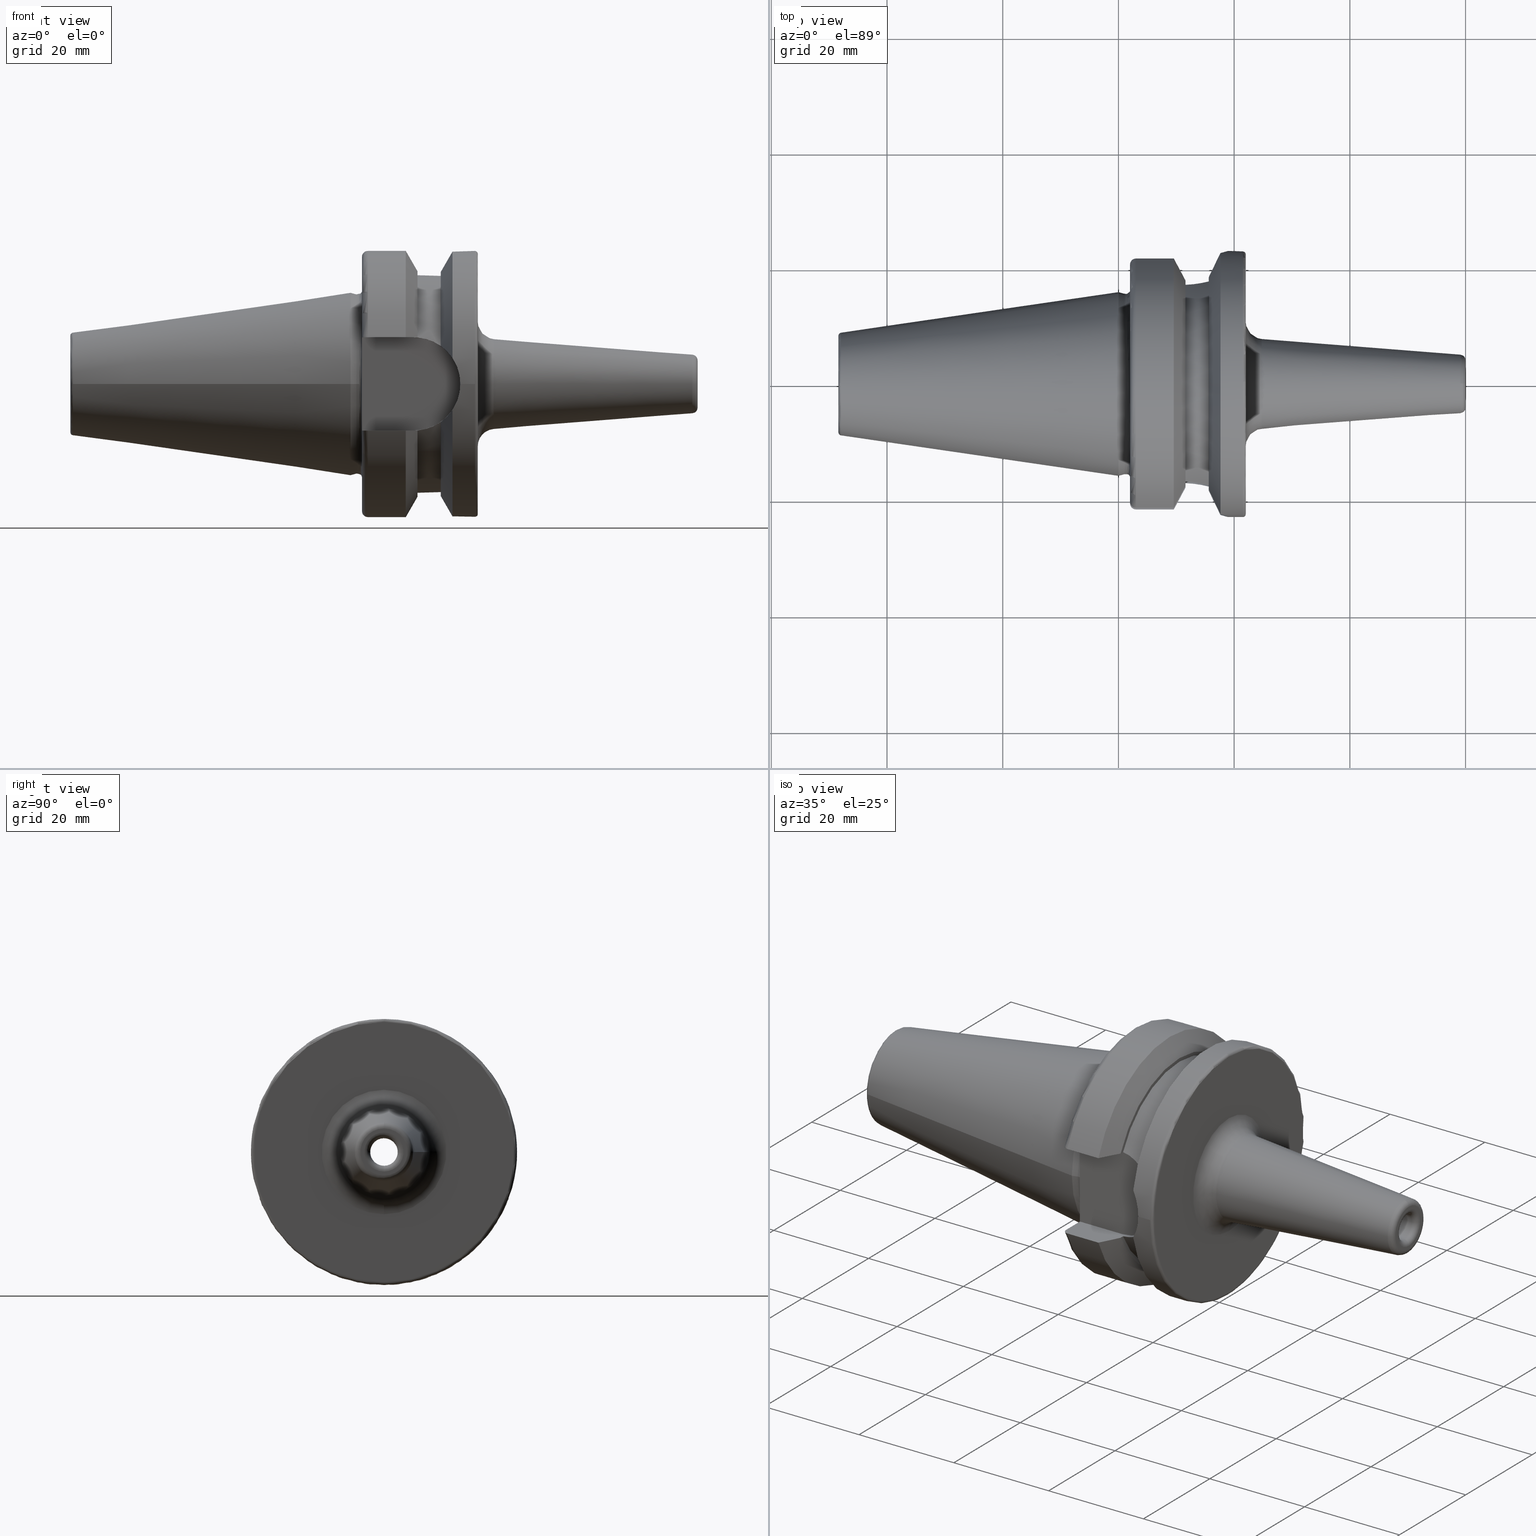
[diagram: canonical four-view strip — front | top / right | iso, engineering-drawing reading convention]
A machine part, canonical four-view strip (front | top / right | iso — engineering-drawing reading convention). The complete STEP part file that produces these views, byte-faithful:
ISO-10303-21;
HEADER;
/* Generated by software containing ST-Developer
 * from STEP Tools, Inc. (www.steptools.com) 
 */

FILE_DESCRIPTION(
/* description */ (''),
/* implementation_level */ '2;1');

FILE_NAME(
/* name */ 'VG022_BT30-SFH4.7625-2.36.stp',
/* time_stamp */ '2024-11-05T09:58:34+09:00',
/* author */ ('YSH'),
/* organization */ (''),
/* preprocessor_version */ 'ST-DEVELOPER v20',
/* originating_system */ 'Autodesk Inventor 2025',
/* authorisation */ '');

FILE_SCHEMA (('AUTOMOTIVE_DESIGN { 1 0 10303 214 3 1 1 }'));
ENDSEC;

DATA;
#10=MECHANICAL_DESIGN_GEOMETRIC_PRESENTATION_REPRESENTATION('',(#13),#1543);
#11=SHAPE_REPRESENTATION_RELATIONSHIP('SRR','None',#1550,#12);
#12=ADVANCED_BREP_SHAPE_REPRESENTATION('',(#14),#1542);
#13=STYLED_ITEM('',(#1559),#14);
#14=MANIFOLD_SOLID_BREP('\X2\C194B9ACB4DC\X0\1',#805);
#15=(
BOUNDED_CURVE()
B_SPLINE_CURVE(2,(#1303,#1304,#1305),.UNSPECIFIED.,.F.,.F.)
B_SPLINE_CURVE_WITH_KNOTS((3,3),(0.,0.293084380504246),.UNSPECIFIED.)
CURVE()
GEOMETRIC_REPRESENTATION_ITEM()
RATIONAL_B_SPLINE_CURVE((1.,1.00176330635057,1.))
REPRESENTATION_ITEM('')
);
#16=(
BOUNDED_CURVE()
B_SPLINE_CURVE(2,(#1324,#1325,#1326),.UNSPECIFIED.,.F.,.F.)
B_SPLINE_CURVE_WITH_KNOTS((3,3),(0.,0.293084380504246),.UNSPECIFIED.)
CURVE()
GEOMETRIC_REPRESENTATION_ITEM()
RATIONAL_B_SPLINE_CURVE((1.,1.0017633063523,1.))
REPRESENTATION_ITEM('')
);
#17=(
BOUNDED_CURVE()
B_SPLINE_CURVE(2,(#1395,#1396,#1397),.UNSPECIFIED.,.F.,.F.)
B_SPLINE_CURVE_WITH_KNOTS((3,3),(0.,0.293084380504246),.UNSPECIFIED.)
CURVE()
GEOMETRIC_REPRESENTATION_ITEM()
RATIONAL_B_SPLINE_CURVE((1.,1.00176330634961,1.))
REPRESENTATION_ITEM('')
);
#18=(
BOUNDED_CURVE()
B_SPLINE_CURVE(2,(#1450,#1451,#1452),.UNSPECIFIED.,.F.,.F.)
B_SPLINE_CURVE_WITH_KNOTS((3,3),(0.,0.293084380504246),.UNSPECIFIED.)
CURVE()
GEOMETRIC_REPRESENTATION_ITEM()
RATIONAL_B_SPLINE_CURVE((1.,1.00176330634997,1.))
REPRESENTATION_ITEM('')
);
#19=B_SPLINE_CURVE_WITH_KNOTS('',3,(#1237,#1238,#1239,#1240),
 .UNSPECIFIED.,.F.,.F.,(4,4),(5.0512271220615,5.18123969966482),
 .UNSPECIFIED.);
#20=B_SPLINE_CURVE_WITH_KNOTS('',3,(#1244,#1245,#1246,#1247,#1248,#1249),
 .UNSPECIFIED.,.F.,.F.,(4,2,4),(1.98157246783865,2.15302711471405,2.39646987897604),
 .UNSPECIFIED.);
#21=B_SPLINE_CURVE_WITH_KNOTS('',3,(#1253,#1254,#1255,#1256,#1257,#1258),
 .UNSPECIFIED.,.F.,.F.,(4,2,4),(7.68395213088373,8.02991733611869,8.17688748303414),
 .UNSPECIFIED.);
#22=B_SPLINE_CURVE_WITH_KNOTS('',3,(#1260,#1261,#1262,#1263,#1264,#1265),
 .UNSPECIFIED.,.F.,.F.,(4,2,4),(1.22422978521585,1.53019992929475,1.68242086035696),
 .UNSPECIFIED.);
#23=B_SPLINE_CURVE_WITH_KNOTS('',3,(#1267,#1268,#1269,#1270,#1271,#1272),
 .UNSPECIFIED.,.F.,.F.,(4,2,4),(0.766038710074736,0.918259641136944,1.22422978521585),
 .UNSPECIFIED.);
#24=B_SPLINE_CURVE_WITH_KNOTS('',3,(#1274,#1275,#1276,#1277,#1278,#1279),
 .UNSPECIFIED.,.F.,.F.,(4,2,4),(9.25978800315029,9.40675815006574,9.7527233553007),
 .UNSPECIFIED.);
#25=B_SPLINE_CURVE_WITH_KNOTS('',3,(#1283,#1284,#1285,#1286,#1287,#1288),
 .UNSPECIFIED.,.F.,.F.,(4,2,4),(0.0643720845929635,0.30781484885496,0.479269495730354),
 .UNSPECIFIED.);
#26=B_SPLINE_CURVE_WITH_KNOTS('',3,(#1292,#1293,#1294,#1295),
 .UNSPECIFIED.,.F.,.F.,(4,4),(1.61083209868431,1.74084467628762),
 .UNSPECIFIED.);
#27=B_SPLINE_CURVE_WITH_KNOTS('',3,(#1309,#1310,#1311,#1312,#1313,#1314,
#1315,#1316,#1317,#1318),.UNSPECIFIED.,.F.,.F.,(4,2,2,2,4),(-0.153429778670641,
-0.112799364340696,-0.0737022015264941,-0.0362302924551293,0.),
 .UNSPECIFIED.);
#28=B_SPLINE_CURVE_WITH_KNOTS('',3,(#1332,#1333,#1334,#1335,#1336,#1337,
#1338,#1339,#1340,#1341),.UNSPECIFIED.,.F.,.F.,(4,2,2,2,4),(0.,0.0362302924551293,
0.073702201526494,0.112799364340696,0.153429778670641),.UNSPECIFIED.);
#29=B_SPLINE_CURVE_WITH_KNOTS('',3,(#1353,#1354,#1355,#1356,#1357,#1358,
#1359,#1360,#1361,#1362),.UNSPECIFIED.,.F.,.F.,(4,2,2,2,4),(3.21449828050643,
3.36671921156864,3.67268935564754,3.97865949972644,4.13088043078865),
 .UNSPECIFIED.);
#30=B_SPLINE_CURVE_WITH_KNOTS('',3,(#1368,#1369,#1370,#1371,#1372,#1373),
 .UNSPECIFIED.,.F.,.F.,(4,2,4),(3.44756284108881,3.59453298800427,3.94049819323923),
 .UNSPECIFIED.);
#31=B_SPLINE_CURVE_WITH_KNOTS('',3,(#1381,#1382,#1383,#1384,#1385,#1386),
 .UNSPECIFIED.,.F.,.F.,(4,2,4),(2.52521404816197,2.76865681242397,2.94011145929936),
 .UNSPECIFIED.);
#32=B_SPLINE_CURVE_WITH_KNOTS('',3,(#1398,#1399,#1400,#1401),
 .UNSPECIFIED.,.F.,.F.,(4,4),(1.61083209868431,1.74084467628763),
 .UNSPECIFIED.);
#33=B_SPLINE_CURVE_WITH_KNOTS('',3,(#1409,#1410,#1411,#1412,#1413,#1414,
#1415,#1416,#1417,#1418),.UNSPECIFIED.,.F.,.F.,(4,2,2,2,4),(-0.153429778670641,
-0.112799364340696,-0.073702201526494,-0.0362302924551292,0.),
 .UNSPECIFIED.);
#34=B_SPLINE_CURVE_WITH_KNOTS('',3,(#1427,#1428,#1429,#1430),
 .UNSPECIFIED.,.F.,.F.,(4,4),(5.0512271220615,5.18123969966481),
 .UNSPECIFIED.);
#35=B_SPLINE_CURVE_WITH_KNOTS('',3,(#1434,#1435,#1436,#1437,#1438,#1439),
 .UNSPECIFIED.,.F.,.F.,(4,2,4),(4.44241443140766,4.61386907828305,4.85731184254505),
 .UNSPECIFIED.);
#36=B_SPLINE_CURVE_WITH_KNOTS('',3,(#1442,#1443,#1444,#1445,#1446,#1447),
 .UNSPECIFIED.,.F.,.F.,(4,2,4),(1.87172696882225,2.21769217405721,2.36466232097267),
 .UNSPECIFIED.);
#37=B_SPLINE_CURVE_WITH_KNOTS('',3,(#1458,#1459,#1460,#1461,#1462,#1463,
#1464,#1465,#1466,#1467),.UNSPECIFIED.,.F.,.F.,(4,2,2,2,4),(0.,0.0362302924551293,
0.0737022015264941,0.112799364340696,0.153429778670641),.UNSPECIFIED.);
#38=CONICAL_SURFACE('',#842,6.49533242966776,0.0785398163397455);
#39=CONICAL_SURFACE('',#850,1.5,1.02974425867665);
#40=CONICAL_SURFACE('',#854,2.5265,1.02974425867665);
#41=CONICAL_SURFACE('',#868,21.2331286619655,1.04937921276159);
#42=CONICAL_SURFACE('',#876,21.2331286619655,1.04937921276161);
#43=CONICAL_SURFACE('',#887,21.2331286619655,1.04937921276159);
#44=CONICAL_SURFACE('',#894,12.3770304778568,0.144812498238939);
#45=CONICAL_SURFACE('',#896,15.7375,0.261799387799149);
#46=CONICAL_SURFACE('',#910,21.2331286619655,1.04937921276161);
#47=CONICAL_SURFACE('',#923,6.4,0.26179938779915);
#48=LINE('',#1195,#87);
#49=LINE('',#1207,#88);
#50=LINE('',#1221,#89);
#51=LINE('',#1225,#90);
#52=LINE('',#1229,#91);
#53=LINE('',#1233,#92);
#54=LINE('',#1242,#93);
#55=LINE('',#1251,#94);
#56=LINE('',#1281,#95);
#57=LINE('',#1290,#96);
#58=LINE('',#1297,#97);
#59=LINE('',#1300,#98);
#60=LINE('',#1307,#99);
#61=LINE('',#1320,#100);
#62=LINE('',#1321,#101);
#63=LINE('',#1328,#102);
#64=LINE('',#1330,#103);
#65=LINE('',#1342,#104);
#66=LINE('',#1344,#105);
#67=LINE('',#1349,#106);
#68=LINE('',#1377,#107);
#69=LINE('',#1390,#108);
#70=LINE('',#1405,#109);
#71=LINE('',#1421,#110);
#72=LINE('',#1425,#111);
#73=LINE('',#1432,#112);
#74=LINE('',#1441,#113);
#75=LINE('',#1454,#114);
#76=LINE('',#1456,#115);
#77=LINE('',#1468,#116);
#78=LINE('',#1471,#117);
#79=LINE('',#1472,#118);
#80=LINE('',#1474,#119);
#81=LINE('',#1488,#120);
#82=LINE('',#1492,#121);
#83=LINE('',#1497,#122);
#84=LINE('',#1523,#123);
#85=LINE('',#1527,#124);
#86=LINE('',#1531,#125);
#87=VECTOR('',#950,2.38125);
#88=VECTOR('',#965,6.49533242966776);
#89=VECTOR('',#984,1.5);
#90=VECTOR('',#989,3.);
#91=VECTOR('',#994,2.5265);
#92=VECTOR('',#999,5.053);
#93=VECTOR('',#1002,10.);
#94=VECTOR('',#1003,10.);
#95=VECTOR('',#1004,10.);
#96=VECTOR('',#1005,10.);
#97=VECTOR('',#1006,10.);
#98=VECTOR('',#1009,10.);
#99=VECTOR('',#1012,10.);
#100=VECTOR('',#1013,10.);
#101=VECTOR('',#1014,10.);
#102=VECTOR('',#1017,10.);
#103=VECTOR('',#1018,10.);
#104=VECTOR('',#1019,10.);
#105=VECTOR('',#1022,10.);
#106=VECTOR('',#1027,23.);
#107=VECTOR('',#1042,10.);
#108=VECTOR('',#1051,10.);
#109=VECTOR('',#1060,10.);
#110=VECTOR('',#1067,10.);
#111=VECTOR('',#1070,10.);
#112=VECTOR('',#1071,10.);
#113=VECTOR('',#1072,10.);
#114=VECTOR('',#1075,10.);
#115=VECTOR('',#1076,10.);
#116=VECTOR('',#1077,10.);
#117=VECTOR('',#1080,10.);
#118=VECTOR('',#1081,10.);
#119=VECTOR('',#1084,10.);
#120=VECTOR('',#1103,12.3770304778568);
#121=VECTOR('',#1108,15.7375);
#122=VECTOR('',#1113,15.6);
#123=VECTOR('',#1158,6.55);
#124=VECTOR('',#1163,6.4);
#125=VECTOR('',#1168,6.25);
#126=CYLINDRICAL_SURFACE('',#835,2.38125);
#127=CYLINDRICAL_SURFACE('',#852,3.);
#128=CYLINDRICAL_SURFACE('',#856,5.053);
#129=CYLINDRICAL_SURFACE('',#858,8.05);
#130=CYLINDRICAL_SURFACE('',#863,23.);
#131=CYLINDRICAL_SURFACE('',#872,18.8);
#132=CYLINDRICAL_SURFACE('',#878,23.);
#133=CYLINDRICAL_SURFACE('',#882,8.05);
#134=CYLINDRICAL_SURFACE('',#898,15.6);
#135=CYLINDRICAL_SURFACE('',#908,23.);
#136=CYLINDRICAL_SURFACE('',#914,18.8);
#137=CYLINDRICAL_SURFACE('',#921,6.55);
#138=CYLINDRICAL_SURFACE('',#925,6.25);
#139=FACE_BOUND('',#208,.T.);
#140=FACE_BOUND('',#214,.T.);
#141=FACE_BOUND('',#242,.T.);
#142=FACE_BOUND('',#251,.T.);
#143=FACE_BOUND('',#257,.T.);
#144=PLANE('',#833);
#145=PLANE('',#848);
#146=PLANE('',#860);
#147=PLANE('',#861);
#148=PLANE('',#862);
#149=PLANE('',#870);
#150=PLANE('',#874);
#151=PLANE('',#884);
#152=PLANE('',#885);
#153=PLANE('',#886);
#154=PLANE('',#904);
#155=PLANE('',#912);
#156=PLANE('',#916);
#157=PLANE('',#919);
#158=PLANE('',#931);
#159=FACE_OUTER_BOUND('',#206,.T.);
#160=FACE_OUTER_BOUND('',#207,.T.);
#161=FACE_OUTER_BOUND('',#209,.T.);
#162=FACE_OUTER_BOUND('',#210,.T.);
#163=FACE_OUTER_BOUND('',#211,.T.);
#164=FACE_OUTER_BOUND('',#212,.T.);
#165=FACE_OUTER_BOUND('',#213,.T.);
#166=FACE_OUTER_BOUND('',#215,.T.);
#167=FACE_OUTER_BOUND('',#216,.T.);
#168=FACE_OUTER_BOUND('',#217,.T.);
#169=FACE_OUTER_BOUND('',#218,.T.);
#170=FACE_OUTER_BOUND('',#219,.T.);
#171=FACE_OUTER_BOUND('',#220,.T.);
#172=FACE_OUTER_BOUND('',#221,.T.);
#173=FACE_OUTER_BOUND('',#222,.T.);
#174=FACE_OUTER_BOUND('',#223,.T.);
#175=FACE_OUTER_BOUND('',#224,.T.);
#176=FACE_OUTER_BOUND('',#225,.T.);
#177=FACE_OUTER_BOUND('',#226,.T.);
#178=FACE_OUTER_BOUND('',#227,.T.);
#179=FACE_OUTER_BOUND('',#228,.T.);
#180=FACE_OUTER_BOUND('',#229,.T.);
#181=FACE_OUTER_BOUND('',#230,.T.);
#182=FACE_OUTER_BOUND('',#231,.T.);
#183=FACE_OUTER_BOUND('',#232,.T.);
#184=FACE_OUTER_BOUND('',#233,.T.);
#185=FACE_OUTER_BOUND('',#234,.T.);
#186=FACE_OUTER_BOUND('',#235,.T.);
#187=FACE_OUTER_BOUND('',#236,.T.);
#188=FACE_OUTER_BOUND('',#237,.T.);
#189=FACE_OUTER_BOUND('',#238,.T.);
#190=FACE_OUTER_BOUND('',#239,.T.);
#191=FACE_OUTER_BOUND('',#240,.T.);
#192=FACE_OUTER_BOUND('',#241,.T.);
#193=FACE_OUTER_BOUND('',#243,.T.);
#194=FACE_OUTER_BOUND('',#244,.T.);
#195=FACE_OUTER_BOUND('',#245,.T.);
#196=FACE_OUTER_BOUND('',#246,.T.);
#197=FACE_OUTER_BOUND('',#247,.T.);
#198=FACE_OUTER_BOUND('',#248,.T.);
#199=FACE_OUTER_BOUND('',#249,.T.);
#200=FACE_OUTER_BOUND('',#250,.T.);
#201=FACE_OUTER_BOUND('',#252,.T.);
#202=FACE_OUTER_BOUND('',#253,.T.);
#203=FACE_OUTER_BOUND('',#254,.T.);
#204=FACE_OUTER_BOUND('',#255,.T.);
#205=FACE_OUTER_BOUND('',#256,.T.);
#206=EDGE_LOOP('',(#511,#512,#513,#514,#515));
#207=EDGE_LOOP('',(#516));
#208=EDGE_LOOP('',(#517));
#209=EDGE_LOOP('',(#518,#519,#520,#521,#522,#523));
#210=EDGE_LOOP('',(#524,#525,#526,#527,#528));
#211=EDGE_LOOP('',(#529,#530,#531,#532,#533,#534));
#212=EDGE_LOOP('',(#535,#536,#537,#538,#539));
#213=EDGE_LOOP('',(#540));
#214=EDGE_LOOP('',(#541));
#215=EDGE_LOOP('',(#542,#543,#544,#545,#546));
#216=EDGE_LOOP('',(#547,#548,#549,#550));
#217=EDGE_LOOP('',(#551,#552,#553,#554));
#218=EDGE_LOOP('',(#555,#556,#557,#558));
#219=EDGE_LOOP('',(#559,#560,#561,#562,#563,#564,#565,#566,#567,#568,#569,
#570,#571,#572,#573));
#220=EDGE_LOOP('',(#574,#575,#576,#577,#578,#579));
#221=EDGE_LOOP('',(#580,#581,#582,#583,#584,#585));
#222=EDGE_LOOP('',(#586,#587,#588,#589));
#223=EDGE_LOOP('',(#590,#591,#592,#593,#594,#595,#596,#597,#598));
#224=EDGE_LOOP('',(#599,#600,#601,#602));
#225=EDGE_LOOP('',(#603,#604,#605,#606));
#226=EDGE_LOOP('',(#607,#608,#609,#610));
#227=EDGE_LOOP('',(#611,#612,#613,#614));
#228=EDGE_LOOP('',(#615,#616,#617,#618,#619,#620));
#229=EDGE_LOOP('',(#621,#622,#623,#624));
#230=EDGE_LOOP('',(#625,#626,#627,#628));
#231=EDGE_LOOP('',(#629,#630,#631,#632,#633,#634,#635,#636,#637,#638,#639,
#640,#641,#642));
#232=EDGE_LOOP('',(#643,#644,#645,#646,#647,#648));
#233=EDGE_LOOP('',(#649,#650,#651,#652,#653,#654));
#234=EDGE_LOOP('',(#655,#656,#657,#658));
#235=EDGE_LOOP('',(#659,#660,#661,#662));
#236=EDGE_LOOP('',(#663,#664,#665,#666,#667));
#237=EDGE_LOOP('',(#668,#669,#670,#671,#672));
#238=EDGE_LOOP('',(#673,#674,#675,#676));
#239=EDGE_LOOP('',(#677,#678,#679,#680,#681));
#240=EDGE_LOOP('',(#682,#683,#684,#685,#686));
#241=EDGE_LOOP('',(#687,#688,#689,#690,#691,#692,#693,#694));
#242=EDGE_LOOP('',(#695));
#243=EDGE_LOOP('',(#696,#697,#698,#699));
#244=EDGE_LOOP('',(#700,#701,#702,#703));
#245=EDGE_LOOP('',(#704,#705,#706,#707,#708,#709));
#246=EDGE_LOOP('',(#710,#711,#712,#713));
#247=EDGE_LOOP('',(#714,#715,#716,#717));
#248=EDGE_LOOP('',(#718,#719,#720,#721));
#249=EDGE_LOOP('',(#722,#723,#724,#725,#726));
#250=EDGE_LOOP('',(#727));
#251=EDGE_LOOP('',(#728));
#252=EDGE_LOOP('',(#729,#730,#731,#732));
#253=EDGE_LOOP('',(#733,#734,#735,#736));
#254=EDGE_LOOP('',(#737,#738,#739,#740,#741));
#255=EDGE_LOOP('',(#742,#743,#744,#745,#746));
#256=EDGE_LOOP('',(#747));
#257=EDGE_LOOP('',(#748));
#258=CIRCLE('',#829,3.38125);
#259=CIRCLE('',#830,1.);
#260=CIRCLE('',#831,2.38125);
#261=CIRCLE('',#832,2.38125);
#262=CIRCLE('',#834,4.07560950834179);
#263=CIRCLE('',#836,2.38125);
#264=CIRCLE('',#837,2.38125);
#265=CIRCLE('',#839,1.);
#266=CIRCLE('',#840,5.07252684207492);
#267=CIRCLE('',#841,5.07252684207492);
#268=CIRCLE('',#843,7.77308433311076);
#269=CIRCLE('',#844,7.77308433311076);
#270=CIRCLE('',#846,3.);
#271=CIRCLE('',#847,10.7638363343101);
#272=CIRCLE('',#849,22.5);
#273=CIRCLE('',#851,3.);
#274=CIRCLE('',#853,3.);
#275=CIRCLE('',#855,5.053);
#276=CIRCLE('',#857,5.053);
#277=CIRCLE('',#859,8.05);
#278=CIRCLE('',#864,23.);
#279=CIRCLE('',#865,23.);
#280=CIRCLE('',#866,23.);
#281=CIRCLE('',#867,23.);
#282=CIRCLE('',#869,19.466257323931);
#283=CIRCLE('',#871,18.8);
#284=CIRCLE('',#873,18.8);
#285=CIRCLE('',#875,19.466257323931);
#286=CIRCLE('',#877,23.);
#287=CIRCLE('',#879,23.);
#288=CIRCLE('',#881,22.);
#289=CIRCLE('',#883,8.05);
#290=CIRCLE('',#888,19.466257323931);
#291=CIRCLE('',#890,8.87906095571352);
#292=CIRCLE('',#891,8.87906095571352);
#293=CIRCLE('',#892,0.5);
#294=CIRCLE('',#893,8.38429446518188);
#295=CIRCLE('',#895,15.875);
#296=CIRCLE('',#897,15.6);
#297=CIRCLE('',#899,15.6);
#298=CIRCLE('',#900,15.6);
#299=CIRCLE('',#902,0.499999999999997);
#300=CIRCLE('',#903,16.1);
#301=CIRCLE('',#905,22.);
#302=CIRCLE('',#907,23.);
#303=CIRCLE('',#909,23.);
#304=CIRCLE('',#911,19.466257323931);
#305=CIRCLE('',#913,18.8);
#306=CIRCLE('',#915,18.8);
#307=CIRCLE('',#918,0.499999999999998);
#308=CIRCLE('',#920,6.55);
#309=CIRCLE('',#922,6.55);
#310=CIRCLE('',#924,6.25);
#311=CIRCLE('',#926,6.25);
#312=CIRCLE('',#927,6.25);
#313=CIRCLE('',#929,7.05);
#314=CIRCLE('',#930,0.8);
#315=VERTEX_POINT('',#1183);
#316=VERTEX_POINT('',#1185);
#317=VERTEX_POINT('',#1187);
#318=VERTEX_POINT('',#1191);
#319=VERTEX_POINT('',#1194);
#320=VERTEX_POINT('',#1196);
#321=VERTEX_POINT('',#1200);
#322=VERTEX_POINT('',#1202);
#323=VERTEX_POINT('',#1206);
#324=VERTEX_POINT('',#1208);
#325=VERTEX_POINT('',#1212);
#326=VERTEX_POINT('',#1216);
#327=VERTEX_POINT('',#1219);
#328=VERTEX_POINT('',#1223);
#329=VERTEX_POINT('',#1227);
#330=VERTEX_POINT('',#1231);
#331=VERTEX_POINT('',#1235);
#332=VERTEX_POINT('',#1236);
#333=VERTEX_POINT('',#1241);
#334=VERTEX_POINT('',#1243);
#335=VERTEX_POINT('',#1250);
#336=VERTEX_POINT('',#1252);
#337=VERTEX_POINT('',#1259);
#338=VERTEX_POINT('',#1266);
#339=VERTEX_POINT('',#1273);
#340=VERTEX_POINT('',#1280);
#341=VERTEX_POINT('',#1282);
#342=VERTEX_POINT('',#1289);
#343=VERTEX_POINT('',#1291);
#344=VERTEX_POINT('',#1296);
#345=VERTEX_POINT('',#1298);
#346=VERTEX_POINT('',#1302);
#347=VERTEX_POINT('',#1306);
#348=VERTEX_POINT('',#1308);
#349=VERTEX_POINT('',#1319);
#350=VERTEX_POINT('',#1323);
#351=VERTEX_POINT('',#1327);
#352=VERTEX_POINT('',#1329);
#353=VERTEX_POINT('',#1331);
#354=VERTEX_POINT('',#1346);
#355=VERTEX_POINT('',#1347);
#356=VERTEX_POINT('',#1350);
#357=VERTEX_POINT('',#1352);
#358=VERTEX_POINT('',#1366);
#359=VERTEX_POINT('',#1375);
#360=VERTEX_POINT('',#1379);
#361=VERTEX_POINT('',#1388);
#362=VERTEX_POINT('',#1392);
#363=VERTEX_POINT('',#1394);
#364=VERTEX_POINT('',#1403);
#365=VERTEX_POINT('',#1407);
#366=VERTEX_POINT('',#1420);
#367=VERTEX_POINT('',#1422);
#368=VERTEX_POINT('',#1424);
#369=VERTEX_POINT('',#1426);
#370=VERTEX_POINT('',#1431);
#371=VERTEX_POINT('',#1433);
#372=VERTEX_POINT('',#1440);
#373=VERTEX_POINT('',#1449);
#374=VERTEX_POINT('',#1453);
#375=VERTEX_POINT('',#1455);
#376=VERTEX_POINT('',#1457);
#377=VERTEX_POINT('',#1470);
#378=VERTEX_POINT('',#1478);
#379=VERTEX_POINT('',#1479);
#380=VERTEX_POINT('',#1482);
#381=VERTEX_POINT('',#1486);
#382=VERTEX_POINT('',#1490);
#383=VERTEX_POINT('',#1494);
#384=VERTEX_POINT('',#1495);
#385=VERTEX_POINT('',#1500);
#386=VERTEX_POINT('',#1519);
#387=VERTEX_POINT('',#1522);
#388=VERTEX_POINT('',#1526);
#389=VERTEX_POINT('',#1530);
#390=VERTEX_POINT('',#1532);
#391=VERTEX_POINT('',#1536);
#392=EDGE_CURVE('',#315,#315,#258,.T.);
#393=EDGE_CURVE('',#315,#316,#259,.T.);
#394=EDGE_CURVE('',#316,#317,#260,.T.);
#395=EDGE_CURVE('',#317,#316,#261,.T.);
#396=EDGE_CURVE('',#318,#318,#262,.T.);
#397=EDGE_CURVE('',#317,#319,#48,.T.);
#398=EDGE_CURVE('',#320,#319,#263,.T.);
#399=EDGE_CURVE('',#319,#320,#264,.T.);
#400=EDGE_CURVE('',#318,#321,#265,.T.);
#401=EDGE_CURVE('',#321,#322,#266,.T.);
#402=EDGE_CURVE('',#322,#321,#267,.T.);
#403=EDGE_CURVE('',#322,#323,#49,.T.);
#404=EDGE_CURVE('',#324,#323,#268,.T.);
#405=EDGE_CURVE('',#323,#324,#269,.T.);
#406=EDGE_CURVE('',#324,#325,#270,.T.);
#407=EDGE_CURVE('',#325,#325,#271,.T.);
#408=EDGE_CURVE('',#326,#326,#272,.T.);
#409=EDGE_CURVE('',#327,#327,#273,.T.);
#410=EDGE_CURVE('',#327,#320,#50,.T.);
#411=EDGE_CURVE('',#328,#328,#274,.T.);
#412=EDGE_CURVE('',#328,#327,#51,.T.);
#413=EDGE_CURVE('',#329,#329,#275,.T.);
#414=EDGE_CURVE('',#329,#328,#52,.T.);
#415=EDGE_CURVE('',#330,#330,#276,.T.);
#416=EDGE_CURVE('',#330,#329,#53,.T.);
#417=EDGE_CURVE('',#331,#332,#19,.T.);
#418=EDGE_CURVE('',#333,#331,#54,.T.);
#419=EDGE_CURVE('',#334,#333,#20,.T.);
#420=EDGE_CURVE('',#335,#334,#55,.T.);
#421=EDGE_CURVE('',#335,#336,#21,.T.);
#422=EDGE_CURVE('',#337,#336,#22,.T.);
#423=EDGE_CURVE('',#338,#337,#23,.T.);
#424=EDGE_CURVE('',#338,#339,#24,.T.);
#425=EDGE_CURVE('',#340,#339,#56,.T.);
#426=EDGE_CURVE('',#341,#340,#25,.T.);
#427=EDGE_CURVE('',#342,#341,#57,.T.);
#428=EDGE_CURVE('',#343,#342,#26,.T.);
#429=EDGE_CURVE('',#344,#343,#58,.T.);
#430=EDGE_CURVE('',#344,#345,#277,.T.);
#431=EDGE_CURVE('',#345,#332,#59,.T.);
#432=EDGE_CURVE('',#346,#343,#15,.T.);
#433=EDGE_CURVE('',#347,#346,#60,.T.);
#434=EDGE_CURVE('',#348,#347,#27,.T.);
#435=EDGE_CURVE('',#349,#348,#61,.T.);
#436=EDGE_CURVE('',#349,#344,#62,.T.);
#437=EDGE_CURVE('',#332,#350,#16,.T.);
#438=EDGE_CURVE('',#345,#351,#63,.T.);
#439=EDGE_CURVE('',#352,#351,#64,.T.);
#440=EDGE_CURVE('',#353,#352,#28,.T.);
#441=EDGE_CURVE('',#350,#353,#65,.T.);
#442=EDGE_CURVE('',#351,#349,#66,.T.);
#443=EDGE_CURVE('',#354,#355,#278,.T.);
#444=EDGE_CURVE('',#354,#337,#67,.T.);
#445=EDGE_CURVE('',#336,#356,#279,.T.);
#446=EDGE_CURVE('',#356,#357,#29,.T.);
#447=EDGE_CURVE('',#357,#338,#280,.T.);
#448=EDGE_CURVE('',#355,#354,#281,.T.);
#449=EDGE_CURVE('',#335,#358,#282,.T.);
#450=EDGE_CURVE('',#356,#358,#30,.T.);
#451=EDGE_CURVE('',#334,#359,#283,.T.);
#452=EDGE_CURVE('',#359,#358,#68,.T.);
#453=EDGE_CURVE('',#333,#360,#284,.T.);
#454=EDGE_CURVE('',#360,#359,#31,.T.);
#455=EDGE_CURVE('',#331,#361,#285,.T.);
#456=EDGE_CURVE('',#361,#360,#69,.T.);
#457=EDGE_CURVE('',#350,#362,#286,.T.);
#458=EDGE_CURVE('',#362,#363,#17,.T.);
#459=EDGE_CURVE('',#363,#361,#32,.T.);
#460=EDGE_CURVE('',#353,#364,#287,.T.);
#461=EDGE_CURVE('',#364,#362,#70,.T.);
#462=EDGE_CURVE('',#352,#365,#288,.T.);
#463=EDGE_CURVE('',#365,#364,#33,.T.);
#464=EDGE_CURVE('',#366,#363,#71,.T.);
#465=EDGE_CURVE('',#367,#366,#289,.T.);
#466=EDGE_CURVE('',#367,#368,#72,.T.);
#467=EDGE_CURVE('',#369,#368,#34,.T.);
#468=EDGE_CURVE('',#370,#369,#73,.T.);
#469=EDGE_CURVE('',#371,#370,#35,.T.);
#470=EDGE_CURVE('',#372,#371,#74,.T.);
#471=EDGE_CURVE('',#372,#357,#36,.T.);
#472=EDGE_CURVE('',#368,#373,#18,.T.);
#473=EDGE_CURVE('',#374,#367,#75,.T.);
#474=EDGE_CURVE('',#375,#374,#76,.T.);
#475=EDGE_CURVE('',#376,#375,#37,.T.);
#476=EDGE_CURVE('',#373,#376,#77,.T.);
#477=EDGE_CURVE('',#377,#365,#78,.T.);
#478=EDGE_CURVE('',#366,#377,#79,.T.);
#479=EDGE_CURVE('',#374,#377,#80,.T.);
#480=EDGE_CURVE('',#372,#339,#290,.T.);
#481=EDGE_CURVE('',#378,#379,#291,.T.);
#482=EDGE_CURVE('',#379,#378,#292,.T.);
#483=EDGE_CURVE('',#379,#380,#293,.T.);
#484=EDGE_CURVE('',#380,#380,#294,.T.);
#485=EDGE_CURVE('',#381,#381,#295,.T.);
#486=EDGE_CURVE('',#381,#378,#81,.T.);
#487=EDGE_CURVE('',#382,#382,#296,.T.);
#488=EDGE_CURVE('',#382,#381,#82,.T.);
#489=EDGE_CURVE('',#383,#384,#297,.T.);
#490=EDGE_CURVE('',#383,#382,#83,.T.);
#491=EDGE_CURVE('',#384,#383,#298,.T.);
#492=EDGE_CURVE('',#384,#385,#299,.T.);
#493=EDGE_CURVE('',#385,#385,#300,.T.);
#494=EDGE_CURVE('',#375,#348,#301,.T.);
#495=EDGE_CURVE('',#376,#347,#302,.T.);
#496=EDGE_CURVE('',#373,#346,#303,.T.);
#497=EDGE_CURVE('',#369,#342,#304,.T.);
#498=EDGE_CURVE('',#370,#341,#305,.T.);
#499=EDGE_CURVE('',#371,#340,#306,.T.);
#500=EDGE_CURVE('',#326,#355,#307,.T.);
#501=EDGE_CURVE('',#386,#386,#308,.T.);
#502=EDGE_CURVE('',#386,#387,#84,.T.);
#503=EDGE_CURVE('',#387,#387,#309,.T.);
#504=EDGE_CURVE('',#387,#388,#85,.T.);
#505=EDGE_CURVE('',#388,#388,#310,.T.);
#506=EDGE_CURVE('',#388,#389,#86,.T.);
#507=EDGE_CURVE('',#390,#389,#311,.T.);
#508=EDGE_CURVE('',#389,#390,#312,.T.);
#509=EDGE_CURVE('',#391,#391,#313,.T.);
#510=EDGE_CURVE('',#391,#390,#314,.T.);
#511=ORIENTED_EDGE('',*,*,#392,.T.);
#512=ORIENTED_EDGE('',*,*,#393,.T.);
#513=ORIENTED_EDGE('',*,*,#394,.T.);
#514=ORIENTED_EDGE('',*,*,#395,.T.);
#515=ORIENTED_EDGE('',*,*,#393,.F.);
#516=ORIENTED_EDGE('',*,*,#396,.F.);
#517=ORIENTED_EDGE('',*,*,#392,.F.);
#518=ORIENTED_EDGE('',*,*,#394,.F.);
#519=ORIENTED_EDGE('',*,*,#395,.F.);
#520=ORIENTED_EDGE('',*,*,#397,.T.);
#521=ORIENTED_EDGE('',*,*,#398,.F.);
#522=ORIENTED_EDGE('',*,*,#399,.F.);
#523=ORIENTED_EDGE('',*,*,#397,.F.);
#524=ORIENTED_EDGE('',*,*,#396,.T.);
#525=ORIENTED_EDGE('',*,*,#400,.T.);
#526=ORIENTED_EDGE('',*,*,#401,.T.);
#527=ORIENTED_EDGE('',*,*,#402,.T.);
#528=ORIENTED_EDGE('',*,*,#400,.F.);
#529=ORIENTED_EDGE('',*,*,#401,.F.);
#530=ORIENTED_EDGE('',*,*,#402,.F.);
#531=ORIENTED_EDGE('',*,*,#403,.T.);
#532=ORIENTED_EDGE('',*,*,#404,.F.);
#533=ORIENTED_EDGE('',*,*,#405,.F.);
#534=ORIENTED_EDGE('',*,*,#403,.F.);
#535=ORIENTED_EDGE('',*,*,#404,.T.);
#536=ORIENTED_EDGE('',*,*,#405,.T.);
#537=ORIENTED_EDGE('',*,*,#406,.T.);
#538=ORIENTED_EDGE('',*,*,#407,.T.);
#539=ORIENTED_EDGE('',*,*,#406,.F.);
#540=ORIENTED_EDGE('',*,*,#408,.T.);
#541=ORIENTED_EDGE('',*,*,#407,.F.);
#542=ORIENTED_EDGE('',*,*,#409,.T.);
#543=ORIENTED_EDGE('',*,*,#410,.T.);
#544=ORIENTED_EDGE('',*,*,#398,.T.);
#545=ORIENTED_EDGE('',*,*,#399,.T.);
#546=ORIENTED_EDGE('',*,*,#410,.F.);
#547=ORIENTED_EDGE('',*,*,#411,.F.);
#548=ORIENTED_EDGE('',*,*,#412,.T.);
#549=ORIENTED_EDGE('',*,*,#409,.F.);
#550=ORIENTED_EDGE('',*,*,#412,.F.);
#551=ORIENTED_EDGE('',*,*,#413,.T.);
#552=ORIENTED_EDGE('',*,*,#414,.T.);
#553=ORIENTED_EDGE('',*,*,#411,.T.);
#554=ORIENTED_EDGE('',*,*,#414,.F.);
#555=ORIENTED_EDGE('',*,*,#415,.F.);
#556=ORIENTED_EDGE('',*,*,#416,.T.);
#557=ORIENTED_EDGE('',*,*,#413,.F.);
#558=ORIENTED_EDGE('',*,*,#416,.F.);
#559=ORIENTED_EDGE('',*,*,#417,.F.);
#560=ORIENTED_EDGE('',*,*,#418,.F.);
#561=ORIENTED_EDGE('',*,*,#419,.F.);
#562=ORIENTED_EDGE('',*,*,#420,.F.);
#563=ORIENTED_EDGE('',*,*,#421,.T.);
#564=ORIENTED_EDGE('',*,*,#422,.F.);
#565=ORIENTED_EDGE('',*,*,#423,.F.);
#566=ORIENTED_EDGE('',*,*,#424,.T.);
#567=ORIENTED_EDGE('',*,*,#425,.F.);
#568=ORIENTED_EDGE('',*,*,#426,.F.);
#569=ORIENTED_EDGE('',*,*,#427,.F.);
#570=ORIENTED_EDGE('',*,*,#428,.F.);
#571=ORIENTED_EDGE('',*,*,#429,.F.);
#572=ORIENTED_EDGE('',*,*,#430,.T.);
#573=ORIENTED_EDGE('',*,*,#431,.T.);
#574=ORIENTED_EDGE('',*,*,#432,.F.);
#575=ORIENTED_EDGE('',*,*,#433,.F.);
#576=ORIENTED_EDGE('',*,*,#434,.F.);
#577=ORIENTED_EDGE('',*,*,#435,.F.);
#578=ORIENTED_EDGE('',*,*,#436,.T.);
#579=ORIENTED_EDGE('',*,*,#429,.T.);
#580=ORIENTED_EDGE('',*,*,#437,.F.);
#581=ORIENTED_EDGE('',*,*,#431,.F.);
#582=ORIENTED_EDGE('',*,*,#438,.T.);
#583=ORIENTED_EDGE('',*,*,#439,.F.);
#584=ORIENTED_EDGE('',*,*,#440,.F.);
#585=ORIENTED_EDGE('',*,*,#441,.F.);
#586=ORIENTED_EDGE('',*,*,#438,.F.);
#587=ORIENTED_EDGE('',*,*,#430,.F.);
#588=ORIENTED_EDGE('',*,*,#436,.F.);
#589=ORIENTED_EDGE('',*,*,#442,.F.);
#590=ORIENTED_EDGE('',*,*,#443,.F.);
#591=ORIENTED_EDGE('',*,*,#444,.T.);
#592=ORIENTED_EDGE('',*,*,#422,.T.);
#593=ORIENTED_EDGE('',*,*,#445,.T.);
#594=ORIENTED_EDGE('',*,*,#446,.T.);
#595=ORIENTED_EDGE('',*,*,#447,.T.);
#596=ORIENTED_EDGE('',*,*,#423,.T.);
#597=ORIENTED_EDGE('',*,*,#444,.F.);
#598=ORIENTED_EDGE('',*,*,#448,.F.);
#599=ORIENTED_EDGE('',*,*,#421,.F.);
#600=ORIENTED_EDGE('',*,*,#449,.T.);
#601=ORIENTED_EDGE('',*,*,#450,.F.);
#602=ORIENTED_EDGE('',*,*,#445,.F.);
#603=ORIENTED_EDGE('',*,*,#420,.T.);
#604=ORIENTED_EDGE('',*,*,#451,.T.);
#605=ORIENTED_EDGE('',*,*,#452,.T.);
#606=ORIENTED_EDGE('',*,*,#449,.F.);
#607=ORIENTED_EDGE('',*,*,#419,.T.);
#608=ORIENTED_EDGE('',*,*,#453,.T.);
#609=ORIENTED_EDGE('',*,*,#454,.T.);
#610=ORIENTED_EDGE('',*,*,#451,.F.);
#611=ORIENTED_EDGE('',*,*,#418,.T.);
#612=ORIENTED_EDGE('',*,*,#455,.T.);
#613=ORIENTED_EDGE('',*,*,#456,.T.);
#614=ORIENTED_EDGE('',*,*,#453,.F.);
#615=ORIENTED_EDGE('',*,*,#417,.T.);
#616=ORIENTED_EDGE('',*,*,#437,.T.);
#617=ORIENTED_EDGE('',*,*,#457,.T.);
#618=ORIENTED_EDGE('',*,*,#458,.T.);
#619=ORIENTED_EDGE('',*,*,#459,.T.);
#620=ORIENTED_EDGE('',*,*,#455,.F.);
#621=ORIENTED_EDGE('',*,*,#441,.T.);
#622=ORIENTED_EDGE('',*,*,#460,.T.);
#623=ORIENTED_EDGE('',*,*,#461,.T.);
#624=ORIENTED_EDGE('',*,*,#457,.F.);
#625=ORIENTED_EDGE('',*,*,#440,.T.);
#626=ORIENTED_EDGE('',*,*,#462,.T.);
#627=ORIENTED_EDGE('',*,*,#463,.T.);
#628=ORIENTED_EDGE('',*,*,#460,.F.);
#629=ORIENTED_EDGE('',*,*,#459,.F.);
#630=ORIENTED_EDGE('',*,*,#464,.F.);
#631=ORIENTED_EDGE('',*,*,#465,.F.);
#632=ORIENTED_EDGE('',*,*,#466,.T.);
#633=ORIENTED_EDGE('',*,*,#467,.F.);
#634=ORIENTED_EDGE('',*,*,#468,.F.);
#635=ORIENTED_EDGE('',*,*,#469,.F.);
#636=ORIENTED_EDGE('',*,*,#470,.F.);
#637=ORIENTED_EDGE('',*,*,#471,.T.);
#638=ORIENTED_EDGE('',*,*,#446,.F.);
#639=ORIENTED_EDGE('',*,*,#450,.T.);
#640=ORIENTED_EDGE('',*,*,#452,.F.);
#641=ORIENTED_EDGE('',*,*,#454,.F.);
#642=ORIENTED_EDGE('',*,*,#456,.F.);
#643=ORIENTED_EDGE('',*,*,#472,.F.);
#644=ORIENTED_EDGE('',*,*,#466,.F.);
#645=ORIENTED_EDGE('',*,*,#473,.F.);
#646=ORIENTED_EDGE('',*,*,#474,.F.);
#647=ORIENTED_EDGE('',*,*,#475,.F.);
#648=ORIENTED_EDGE('',*,*,#476,.F.);
#649=ORIENTED_EDGE('',*,*,#458,.F.);
#650=ORIENTED_EDGE('',*,*,#461,.F.);
#651=ORIENTED_EDGE('',*,*,#463,.F.);
#652=ORIENTED_EDGE('',*,*,#477,.F.);
#653=ORIENTED_EDGE('',*,*,#478,.F.);
#654=ORIENTED_EDGE('',*,*,#464,.T.);
#655=ORIENTED_EDGE('',*,*,#478,.T.);
#656=ORIENTED_EDGE('',*,*,#479,.F.);
#657=ORIENTED_EDGE('',*,*,#473,.T.);
#658=ORIENTED_EDGE('',*,*,#465,.T.);
#659=ORIENTED_EDGE('',*,*,#424,.F.);
#660=ORIENTED_EDGE('',*,*,#447,.F.);
#661=ORIENTED_EDGE('',*,*,#471,.F.);
#662=ORIENTED_EDGE('',*,*,#480,.T.);
#663=ORIENTED_EDGE('',*,*,#481,.F.);
#664=ORIENTED_EDGE('',*,*,#482,.F.);
#665=ORIENTED_EDGE('',*,*,#483,.T.);
#666=ORIENTED_EDGE('',*,*,#484,.T.);
#667=ORIENTED_EDGE('',*,*,#483,.F.);
#668=ORIENTED_EDGE('',*,*,#485,.F.);
#669=ORIENTED_EDGE('',*,*,#486,.T.);
#670=ORIENTED_EDGE('',*,*,#481,.T.);
#671=ORIENTED_EDGE('',*,*,#482,.T.);
#672=ORIENTED_EDGE('',*,*,#486,.F.);
#673=ORIENTED_EDGE('',*,*,#487,.F.);
#674=ORIENTED_EDGE('',*,*,#488,.T.);
#675=ORIENTED_EDGE('',*,*,#485,.T.);
#676=ORIENTED_EDGE('',*,*,#488,.F.);
#677=ORIENTED_EDGE('',*,*,#489,.F.);
#678=ORIENTED_EDGE('',*,*,#490,.T.);
#679=ORIENTED_EDGE('',*,*,#487,.T.);
#680=ORIENTED_EDGE('',*,*,#490,.F.);
#681=ORIENTED_EDGE('',*,*,#491,.F.);
#682=ORIENTED_EDGE('',*,*,#489,.T.);
#683=ORIENTED_EDGE('',*,*,#492,.T.);
#684=ORIENTED_EDGE('',*,*,#493,.F.);
#685=ORIENTED_EDGE('',*,*,#492,.F.);
#686=ORIENTED_EDGE('',*,*,#491,.T.);
#687=ORIENTED_EDGE('',*,*,#435,.T.);
#688=ORIENTED_EDGE('',*,*,#494,.F.);
#689=ORIENTED_EDGE('',*,*,#474,.T.);
#690=ORIENTED_EDGE('',*,*,#479,.T.);
#691=ORIENTED_EDGE('',*,*,#477,.T.);
#692=ORIENTED_EDGE('',*,*,#462,.F.);
#693=ORIENTED_EDGE('',*,*,#439,.T.);
#694=ORIENTED_EDGE('',*,*,#442,.T.);
#695=ORIENTED_EDGE('',*,*,#493,.T.);
#696=ORIENTED_EDGE('',*,*,#434,.T.);
#697=ORIENTED_EDGE('',*,*,#495,.F.);
#698=ORIENTED_EDGE('',*,*,#475,.T.);
#699=ORIENTED_EDGE('',*,*,#494,.T.);
#700=ORIENTED_EDGE('',*,*,#433,.T.);
#701=ORIENTED_EDGE('',*,*,#496,.F.);
#702=ORIENTED_EDGE('',*,*,#476,.T.);
#703=ORIENTED_EDGE('',*,*,#495,.T.);
#704=ORIENTED_EDGE('',*,*,#428,.T.);
#705=ORIENTED_EDGE('',*,*,#497,.F.);
#706=ORIENTED_EDGE('',*,*,#467,.T.);
#707=ORIENTED_EDGE('',*,*,#472,.T.);
#708=ORIENTED_EDGE('',*,*,#496,.T.);
#709=ORIENTED_EDGE('',*,*,#432,.T.);
#710=ORIENTED_EDGE('',*,*,#427,.T.);
#711=ORIENTED_EDGE('',*,*,#498,.F.);
#712=ORIENTED_EDGE('',*,*,#468,.T.);
#713=ORIENTED_EDGE('',*,*,#497,.T.);
#714=ORIENTED_EDGE('',*,*,#426,.T.);
#715=ORIENTED_EDGE('',*,*,#499,.F.);
#716=ORIENTED_EDGE('',*,*,#469,.T.);
#717=ORIENTED_EDGE('',*,*,#498,.T.);
#718=ORIENTED_EDGE('',*,*,#425,.T.);
#719=ORIENTED_EDGE('',*,*,#480,.F.);
#720=ORIENTED_EDGE('',*,*,#470,.T.);
#721=ORIENTED_EDGE('',*,*,#499,.T.);
#722=ORIENTED_EDGE('',*,*,#408,.F.);
#723=ORIENTED_EDGE('',*,*,#500,.T.);
#724=ORIENTED_EDGE('',*,*,#448,.T.);
#725=ORIENTED_EDGE('',*,*,#443,.T.);
#726=ORIENTED_EDGE('',*,*,#500,.F.);
#727=ORIENTED_EDGE('',*,*,#501,.F.);
#728=ORIENTED_EDGE('',*,*,#415,.T.);
#729=ORIENTED_EDGE('',*,*,#501,.T.);
#730=ORIENTED_EDGE('',*,*,#502,.T.);
#731=ORIENTED_EDGE('',*,*,#503,.F.);
#732=ORIENTED_EDGE('',*,*,#502,.F.);
#733=ORIENTED_EDGE('',*,*,#503,.T.);
#734=ORIENTED_EDGE('',*,*,#504,.T.);
#735=ORIENTED_EDGE('',*,*,#505,.F.);
#736=ORIENTED_EDGE('',*,*,#504,.F.);
#737=ORIENTED_EDGE('',*,*,#505,.T.);
#738=ORIENTED_EDGE('',*,*,#506,.T.);
#739=ORIENTED_EDGE('',*,*,#507,.F.);
#740=ORIENTED_EDGE('',*,*,#508,.F.);
#741=ORIENTED_EDGE('',*,*,#506,.F.);
#742=ORIENTED_EDGE('',*,*,#509,.F.);
#743=ORIENTED_EDGE('',*,*,#510,.T.);
#744=ORIENTED_EDGE('',*,*,#507,.T.);
#745=ORIENTED_EDGE('',*,*,#508,.T.);
#746=ORIENTED_EDGE('',*,*,#510,.F.);
#747=ORIENTED_EDGE('',*,*,#484,.F.);
#748=ORIENTED_EDGE('',*,*,#509,.T.);
#749=TOROIDAL_SURFACE('',#828,3.38125,1.);
#750=TOROIDAL_SURFACE('',#838,4.07560950834179,1.);
#751=TOROIDAL_SURFACE('',#845,10.7638363343101,3.);
#752=TOROIDAL_SURFACE('',#880,22.,1.00000000000001);
#753=TOROIDAL_SURFACE('',#889,8.38429446518188,0.5);
#754=TOROIDAL_SURFACE('',#901,16.1,0.499999999999997);
#755=TOROIDAL_SURFACE('',#906,22.,1.00000000000001);
#756=TOROIDAL_SURFACE('',#917,22.5,0.499999999999998);
#757=TOROIDAL_SURFACE('',#928,7.05,0.8);
#758=ADVANCED_FACE('',(#159),#749,.T.);
#759=ADVANCED_FACE('',(#160,#139),#144,.T.);
#760=ADVANCED_FACE('',(#161),#126,.F.);
#761=ADVANCED_FACE('',(#162),#750,.T.);
#762=ADVANCED_FACE('',(#163),#38,.T.);
#763=ADVANCED_FACE('',(#164),#751,.F.);
#764=ADVANCED_FACE('',(#165,#140),#145,.T.);
#765=ADVANCED_FACE('',(#166),#39,.F.);
#766=ADVANCED_FACE('',(#167),#127,.F.);
#767=ADVANCED_FACE('',(#168),#40,.F.);
#768=ADVANCED_FACE('',(#169),#128,.F.);
#769=ADVANCED_FACE('',(#170),#129,.F.);
#770=ADVANCED_FACE('',(#171),#146,.T.);
#771=ADVANCED_FACE('',(#172),#147,.T.);
#772=ADVANCED_FACE('',(#173),#148,.F.);
#773=ADVANCED_FACE('',(#174),#130,.T.);
#774=ADVANCED_FACE('',(#175),#41,.T.);
#775=ADVANCED_FACE('',(#176),#149,.T.);
#776=ADVANCED_FACE('',(#177),#131,.T.);
#777=ADVANCED_FACE('',(#178),#150,.T.);
#778=ADVANCED_FACE('',(#179),#42,.T.);
#779=ADVANCED_FACE('',(#180),#132,.T.);
#780=ADVANCED_FACE('',(#181),#752,.T.);
#781=ADVANCED_FACE('',(#182),#133,.F.);
#782=ADVANCED_FACE('',(#183),#151,.F.);
#783=ADVANCED_FACE('',(#184),#152,.F.);
#784=ADVANCED_FACE('',(#185),#153,.T.);
#785=ADVANCED_FACE('',(#186),#43,.T.);
#786=ADVANCED_FACE('',(#187),#753,.T.);
#787=ADVANCED_FACE('',(#188),#44,.T.);
#788=ADVANCED_FACE('',(#189),#45,.T.);
#789=ADVANCED_FACE('',(#190),#134,.T.);
#790=ADVANCED_FACE('',(#191),#754,.F.);
#791=ADVANCED_FACE('',(#192,#141),#154,.T.);
#792=ADVANCED_FACE('',(#193),#755,.T.);
#793=ADVANCED_FACE('',(#194),#135,.T.);
#794=ADVANCED_FACE('',(#195),#46,.T.);
#795=ADVANCED_FACE('',(#196),#155,.T.);
#796=ADVANCED_FACE('',(#197),#136,.T.);
#797=ADVANCED_FACE('',(#198),#156,.T.);
#798=ADVANCED_FACE('',(#199),#756,.T.);
#799=ADVANCED_FACE('',(#200,#142),#157,.T.);
#800=ADVANCED_FACE('',(#201),#137,.F.);
#801=ADVANCED_FACE('',(#202),#47,.F.);
#802=ADVANCED_FACE('',(#203),#138,.F.);
#803=ADVANCED_FACE('',(#204),#757,.T.);
#804=ADVANCED_FACE('',(#205,#143),#158,.T.);
#805=CLOSED_SHELL('',(#758,#759,#760,#761,#762,#763,#764,#765,#766,#767,
#768,#769,#770,#771,#772,#773,#774,#775,#776,#777,#778,#779,#780,#781,#782,
#783,#784,#785,#786,#787,#788,#789,#790,#791,#792,#793,#794,#795,#796,#797,
#798,#799,#800,#801,#802,#803,#804));
#806=DERIVED_UNIT_ELEMENT(#809,1.);
#807=DERIVED_UNIT_ELEMENT(#1545,-3.);
#808=DIMENSIONAL_EXPONENTS(0.,1.,0.,0.,0.,0.,0.);
#809=(
CONVERSION_BASED_UNIT('gram',#811)
MASS_UNIT()
NAMED_UNIT(#808)
);
#810=(
MASS_UNIT()
NAMED_UNIT(*)
SI_UNIT(.KILO.,.GRAM.)
);
#811=MASS_MEASURE_WITH_UNIT(MASS_MEASURE(0.001),#810);
#812=DERIVED_UNIT((#806,#807));
#813=MEASURE_REPRESENTATION_ITEM('density measure',
POSITIVE_RATIO_MEASURE(1.),#812);
#814=PROPERTY_DEFINITION_REPRESENTATION(#819,#816);
#815=PROPERTY_DEFINITION_REPRESENTATION(#820,#817);
#816=REPRESENTATION('material name',(#818),#1542);
#817=REPRESENTATION('density',(#813),#1542);
#818=DESCRIPTIVE_REPRESENTATION_ITEM('\X2\C77CBC18\X0\','\X2\C77CBC18\X0\');
#819=PROPERTY_DEFINITION('material property','material name',#1552);
#820=PROPERTY_DEFINITION('material property','density of part',#1552);
#821=DATE_TIME_ROLE('creation_date');
#822=APPLIED_DATE_AND_TIME_ASSIGNMENT(#823,#821,(#1552));
#823=DATE_AND_TIME(#824,#825);
#824=CALENDAR_DATE(2020,17,3);
#825=LOCAL_TIME(0,0,0.,#826);
#826=COORDINATED_UNIVERSAL_TIME_OFFSET(0,0,.BEHIND.);
#827=AXIS2_PLACEMENT_3D('',#1181,#932,#933);
#828=AXIS2_PLACEMENT_3D('',#1182,#934,#935);
#829=AXIS2_PLACEMENT_3D('',#1184,#936,#937);
#830=AXIS2_PLACEMENT_3D('',#1186,#938,#939);
#831=AXIS2_PLACEMENT_3D('',#1188,#940,#941);
#832=AXIS2_PLACEMENT_3D('',#1189,#942,#943);
#833=AXIS2_PLACEMENT_3D('',#1190,#944,#945);
#834=AXIS2_PLACEMENT_3D('',#1192,#946,#947);
#835=AXIS2_PLACEMENT_3D('',#1193,#948,#949);
#836=AXIS2_PLACEMENT_3D('',#1197,#951,#952);
#837=AXIS2_PLACEMENT_3D('',#1198,#953,#954);
#838=AXIS2_PLACEMENT_3D('',#1199,#955,#956);
#839=AXIS2_PLACEMENT_3D('',#1201,#957,#958);
#840=AXIS2_PLACEMENT_3D('',#1203,#959,#960);
#841=AXIS2_PLACEMENT_3D('',#1204,#961,#962);
#842=AXIS2_PLACEMENT_3D('',#1205,#963,#964);
#843=AXIS2_PLACEMENT_3D('',#1209,#966,#967);
#844=AXIS2_PLACEMENT_3D('',#1210,#968,#969);
#845=AXIS2_PLACEMENT_3D('',#1211,#970,#971);
#846=AXIS2_PLACEMENT_3D('',#1213,#972,#973);
#847=AXIS2_PLACEMENT_3D('',#1214,#974,#975);
#848=AXIS2_PLACEMENT_3D('',#1215,#976,#977);
#849=AXIS2_PLACEMENT_3D('',#1217,#978,#979);
#850=AXIS2_PLACEMENT_3D('',#1218,#980,#981);
#851=AXIS2_PLACEMENT_3D('',#1220,#982,#983);
#852=AXIS2_PLACEMENT_3D('',#1222,#985,#986);
#853=AXIS2_PLACEMENT_3D('',#1224,#987,#988);
#854=AXIS2_PLACEMENT_3D('',#1226,#990,#991);
#855=AXIS2_PLACEMENT_3D('',#1228,#992,#993);
#856=AXIS2_PLACEMENT_3D('',#1230,#995,#996);
#857=AXIS2_PLACEMENT_3D('',#1232,#997,#998);
#858=AXIS2_PLACEMENT_3D('',#1234,#1000,#1001);
#859=AXIS2_PLACEMENT_3D('',#1299,#1007,#1008);
#860=AXIS2_PLACEMENT_3D('',#1301,#1010,#1011);
#861=AXIS2_PLACEMENT_3D('',#1322,#1015,#1016);
#862=AXIS2_PLACEMENT_3D('',#1343,#1020,#1021);
#863=AXIS2_PLACEMENT_3D('',#1345,#1023,#1024);
#864=AXIS2_PLACEMENT_3D('',#1348,#1025,#1026);
#865=AXIS2_PLACEMENT_3D('',#1351,#1028,#1029);
#866=AXIS2_PLACEMENT_3D('',#1363,#1030,#1031);
#867=AXIS2_PLACEMENT_3D('',#1364,#1032,#1033);
#868=AXIS2_PLACEMENT_3D('',#1365,#1034,#1035);
#869=AXIS2_PLACEMENT_3D('',#1367,#1036,#1037);
#870=AXIS2_PLACEMENT_3D('',#1374,#1038,#1039);
#871=AXIS2_PLACEMENT_3D('',#1376,#1040,#1041);
#872=AXIS2_PLACEMENT_3D('',#1378,#1043,#1044);
#873=AXIS2_PLACEMENT_3D('',#1380,#1045,#1046);
#874=AXIS2_PLACEMENT_3D('',#1387,#1047,#1048);
#875=AXIS2_PLACEMENT_3D('',#1389,#1049,#1050);
#876=AXIS2_PLACEMENT_3D('',#1391,#1052,#1053);
#877=AXIS2_PLACEMENT_3D('',#1393,#1054,#1055);
#878=AXIS2_PLACEMENT_3D('',#1402,#1056,#1057);
#879=AXIS2_PLACEMENT_3D('',#1404,#1058,#1059);
#880=AXIS2_PLACEMENT_3D('',#1406,#1061,#1062);
#881=AXIS2_PLACEMENT_3D('',#1408,#1063,#1064);
#882=AXIS2_PLACEMENT_3D('',#1419,#1065,#1066);
#883=AXIS2_PLACEMENT_3D('',#1423,#1068,#1069);
#884=AXIS2_PLACEMENT_3D('',#1448,#1073,#1074);
#885=AXIS2_PLACEMENT_3D('',#1469,#1078,#1079);
#886=AXIS2_PLACEMENT_3D('',#1473,#1082,#1083);
#887=AXIS2_PLACEMENT_3D('',#1475,#1085,#1086);
#888=AXIS2_PLACEMENT_3D('',#1476,#1087,#1088);
#889=AXIS2_PLACEMENT_3D('',#1477,#1089,#1090);
#890=AXIS2_PLACEMENT_3D('',#1480,#1091,#1092);
#891=AXIS2_PLACEMENT_3D('',#1481,#1093,#1094);
#892=AXIS2_PLACEMENT_3D('',#1483,#1095,#1096);
#893=AXIS2_PLACEMENT_3D('',#1484,#1097,#1098);
#894=AXIS2_PLACEMENT_3D('',#1485,#1099,#1100);
#895=AXIS2_PLACEMENT_3D('',#1487,#1101,#1102);
#896=AXIS2_PLACEMENT_3D('',#1489,#1104,#1105);
#897=AXIS2_PLACEMENT_3D('',#1491,#1106,#1107);
#898=AXIS2_PLACEMENT_3D('',#1493,#1109,#1110);
#899=AXIS2_PLACEMENT_3D('',#1496,#1111,#1112);
#900=AXIS2_PLACEMENT_3D('',#1498,#1114,#1115);
#901=AXIS2_PLACEMENT_3D('',#1499,#1116,#1117);
#902=AXIS2_PLACEMENT_3D('',#1501,#1118,#1119);
#903=AXIS2_PLACEMENT_3D('',#1502,#1120,#1121);
#904=AXIS2_PLACEMENT_3D('',#1503,#1122,#1123);
#905=AXIS2_PLACEMENT_3D('',#1504,#1124,#1125);
#906=AXIS2_PLACEMENT_3D('',#1505,#1126,#1127);
#907=AXIS2_PLACEMENT_3D('',#1506,#1128,#1129);
#908=AXIS2_PLACEMENT_3D('',#1507,#1130,#1131);
#909=AXIS2_PLACEMENT_3D('',#1508,#1132,#1133);
#910=AXIS2_PLACEMENT_3D('',#1509,#1134,#1135);
#911=AXIS2_PLACEMENT_3D('',#1510,#1136,#1137);
#912=AXIS2_PLACEMENT_3D('',#1511,#1138,#1139);
#913=AXIS2_PLACEMENT_3D('',#1512,#1140,#1141);
#914=AXIS2_PLACEMENT_3D('',#1513,#1142,#1143);
#915=AXIS2_PLACEMENT_3D('',#1514,#1144,#1145);
#916=AXIS2_PLACEMENT_3D('',#1515,#1146,#1147);
#917=AXIS2_PLACEMENT_3D('',#1516,#1148,#1149);
#918=AXIS2_PLACEMENT_3D('',#1517,#1150,#1151);
#919=AXIS2_PLACEMENT_3D('',#1518,#1152,#1153);
#920=AXIS2_PLACEMENT_3D('',#1520,#1154,#1155);
#921=AXIS2_PLACEMENT_3D('',#1521,#1156,#1157);
#922=AXIS2_PLACEMENT_3D('',#1524,#1159,#1160);
#923=AXIS2_PLACEMENT_3D('',#1525,#1161,#1162);
#924=AXIS2_PLACEMENT_3D('',#1528,#1164,#1165);
#925=AXIS2_PLACEMENT_3D('',#1529,#1166,#1167);
#926=AXIS2_PLACEMENT_3D('',#1533,#1169,#1170);
#927=AXIS2_PLACEMENT_3D('',#1534,#1171,#1172);
#928=AXIS2_PLACEMENT_3D('',#1535,#1173,#1174);
#929=AXIS2_PLACEMENT_3D('',#1537,#1175,#1176);
#930=AXIS2_PLACEMENT_3D('',#1538,#1177,#1178);
#931=AXIS2_PLACEMENT_3D('',#1539,#1179,#1180);
#932=DIRECTION('axis',(0.,0.,1.));
#933=DIRECTION('refdir',(1.,0.,0.));
#934=DIRECTION('center_axis',(-1.,0.,0.));
#935=DIRECTION('ref_axis',(0.,0.,1.));
#936=DIRECTION('center_axis',(1.,0.,0.));
#937=DIRECTION('ref_axis',(0.,-1.22464679914735E-16,1.));
#938=DIRECTION('center_axis',(0.,-1.,1.22464679914735E-16));
#939=DIRECTION('ref_axis',(0.,-1.22464679914735E-16,-1.));
#940=DIRECTION('center_axis',(-1.,0.,0.));
#941=DIRECTION('ref_axis',(0.,-1.22464679914735E-16,1.));
#942=DIRECTION('center_axis',(-1.,0.,0.));
#943=DIRECTION('ref_axis',(0.,-1.22464679914735E-16,1.));
#944=DIRECTION('center_axis',(1.,0.,0.));
#945=DIRECTION('ref_axis',(0.,0.,-1.));
#946=DIRECTION('center_axis',(-1.,0.,0.));
#947=DIRECTION('ref_axis',(0.,1.,-6.12323399573677E-17));
#948=DIRECTION('center_axis',(1.,0.,0.));
#949=DIRECTION('ref_axis',(0.,0.,-1.));
#950=DIRECTION('',(-1.,0.,0.));
#951=DIRECTION('center_axis',(1.,0.,0.));
#952=DIRECTION('ref_axis',(0.,0.,-1.));
#953=DIRECTION('center_axis',(1.,0.,0.));
#954=DIRECTION('ref_axis',(0.,0.,-1.));
#955=DIRECTION('center_axis',(1.,0.,0.));
#956=DIRECTION('ref_axis',(0.,0.,-1.));
#957=DIRECTION('center_axis',(0.,-1.,-1.22464679914735E-16));
#958=DIRECTION('ref_axis',(0.,-1.22464679914735E-16,1.));
#959=DIRECTION('center_axis',(1.,0.,0.));
#960=DIRECTION('ref_axis',(0.,1.,3.06161699786838E-17));
#961=DIRECTION('center_axis',(1.,0.,0.));
#962=DIRECTION('ref_axis',(0.,1.,3.06161699786838E-17));
#963=DIRECTION('center_axis',(-1.,0.,0.));
#964=DIRECTION('ref_axis',(0.,-1.,0.));
#965=DIRECTION('',(-0.996917333733128,0.0784590957278456,9.6084680447102E-18));
#966=DIRECTION('center_axis',(-1.,0.,0.));
#967=DIRECTION('ref_axis',(0.,1.,1.22464679914735E-16));
#968=DIRECTION('center_axis',(-1.,0.,0.));
#969=DIRECTION('ref_axis',(0.,1.,1.22464679914735E-16));
#970=DIRECTION('center_axis',(-1.,-1.62798202122572E-21,0.));
#971=DIRECTION('ref_axis',(0.,0.,1.));
#972=DIRECTION('center_axis',(1.62798202122572E-21,-1.,1.22464679914735E-16));
#973=DIRECTION('ref_axis',(0.,-1.22464679914735E-16,-1.));
#974=DIRECTION('center_axis',(1.,1.62798202122572E-21,0.));
#975=DIRECTION('ref_axis',(-1.62798202122572E-21,1.,1.22464679914735E-16));
#976=DIRECTION('center_axis',(1.,1.62798202122572E-21,0.));
#977=DIRECTION('ref_axis',(0.,0.,-1.));
#978=DIRECTION('center_axis',(1.,1.62798202122572E-21,0.));
#979=DIRECTION('ref_axis',(0.,0.,-1.));
#980=DIRECTION('center_axis',(-1.,-1.62798202122572E-21,0.));
#981=DIRECTION('ref_axis',(0.,0.,1.));
#982=DIRECTION('center_axis',(-1.,-1.62798202122572E-21,0.));
#983=DIRECTION('ref_axis',(0.,0.,1.));
#984=DIRECTION('',(0.515038074910054,1.04973557586588E-16,0.857167300702112));
#985=DIRECTION('center_axis',(-1.,-1.62798202122572E-21,0.));
#986=DIRECTION('ref_axis',(0.,0.,1.));
#987=DIRECTION('center_axis',(1.,1.62798202122572E-21,0.));
#988=DIRECTION('ref_axis',(0.,0.,1.));
#989=DIRECTION('',(1.,1.62798202122572E-21,0.));
#990=DIRECTION('center_axis',(-1.,-1.62798202122572E-21,0.));
#991=DIRECTION('ref_axis',(0.,0.,1.));
#992=DIRECTION('center_axis',(-1.,-1.62798202122572E-21,0.));
#993=DIRECTION('ref_axis',(0.,0.,1.));
#994=DIRECTION('',(0.515038074910054,1.04973557586588E-16,0.857167300702112));
#995=DIRECTION('center_axis',(-1.,-1.62798202122572E-21,0.));
#996=DIRECTION('ref_axis',(0.,0.,1.));
#997=DIRECTION('center_axis',(1.,1.62798202122572E-21,0.));
#998=DIRECTION('ref_axis',(0.,0.,1.));
#999=DIRECTION('',(1.,1.62798202122572E-21,0.));
#1000=DIRECTION('center_axis',(0.,1.,0.));
#1001=DIRECTION('ref_axis',(1.,0.,-1.83697019872103E-16));
#1002=DIRECTION('',(0.,-1.,0.));
#1003=DIRECTION('',(0.,1.,0.));
#1004=DIRECTION('',(0.,-1.,0.));
#1005=DIRECTION('',(0.,1.,0.));
#1006=DIRECTION('',(0.,-1.,0.));
#1007=DIRECTION('center_axis',(0.,1.,0.));
#1008=DIRECTION('ref_axis',(0.,0.,1.));
#1009=DIRECTION('',(0.,-1.,0.));
#1010=DIRECTION('center_axis',(0.,0.,-1.));
#1011=DIRECTION('ref_axis',(1.,0.,0.));
#1012=DIRECTION('',(1.,1.62798202122572E-21,0.));
#1013=DIRECTION('',(1.62798202122572E-21,-1.,0.));
#1014=DIRECTION('',(1.,0.,0.));
#1015=DIRECTION('center_axis',(-4.96189061284986E-16,0.,1.));
#1016=DIRECTION('ref_axis',(-1.,0.,-4.96189061284986E-16));
#1017=DIRECTION('',(-1.,0.,-4.96189061284986E-16));
#1018=DIRECTION('',(-1.62798202122572E-21,1.,-8.07786870900826E-37));
#1019=DIRECTION('',(-1.,-1.62798202122572E-21,0.));
#1020=DIRECTION('center_axis',(0.,1.,0.));
#1021=DIRECTION('ref_axis',(0.,0.,1.));
#1022=DIRECTION('',(0.,0.,1.));
#1023=DIRECTION('center_axis',(1.,1.62798202122572E-21,0.));
#1024=DIRECTION('ref_axis',(0.,1.,0.));
#1025=DIRECTION('center_axis',(1.,1.62798202122572E-21,0.));
#1026=DIRECTION('ref_axis',(0.,0.,-1.));
#1027=DIRECTION('',(-1.,-1.62798202122572E-21,0.));
#1028=DIRECTION('center_axis',(1.,1.62798202122572E-21,0.));
#1029=DIRECTION('ref_axis',(0.,0.,-1.));
#1030=DIRECTION('center_axis',(1.,1.62798202122572E-21,0.));
#1031=DIRECTION('ref_axis',(0.,0.,-1.));
#1032=DIRECTION('center_axis',(1.,1.62798202122572E-21,0.));
#1033=DIRECTION('ref_axis',(0.,0.,-1.));
#1034=DIRECTION('center_axis',(1.,1.62798202122572E-21,0.));
#1035=DIRECTION('ref_axis',(0.,1.,0.));
#1036=DIRECTION('center_axis',(1.,1.62798202122572E-21,0.));
#1037=DIRECTION('ref_axis',(0.,0.,-1.));
#1038=DIRECTION('center_axis',(-1.,-1.62798202122572E-21,0.));
#1039=DIRECTION('ref_axis',(0.,0.,1.));
#1040=DIRECTION('center_axis',(1.,1.62798202122572E-21,0.));
#1041=DIRECTION('ref_axis',(0.,0.,-1.));
#1042=DIRECTION('',(0.,1.,0.));
#1043=DIRECTION('center_axis',(1.,1.62798202122572E-21,0.));
#1044=DIRECTION('ref_axis',(0.,1.,0.));
#1045=DIRECTION('center_axis',(1.,1.62798202122572E-21,0.));
#1046=DIRECTION('ref_axis',(0.,0.,-1.));
#1047=DIRECTION('center_axis',(1.,1.62798202122572E-21,0.));
#1048=DIRECTION('ref_axis',(0.,0.,-1.));
#1049=DIRECTION('center_axis',(1.,1.62798202122572E-21,0.));
#1050=DIRECTION('ref_axis',(0.,0.,-1.));
#1051=DIRECTION('',(0.,-1.,0.));
#1052=DIRECTION('center_axis',(-1.,-1.62798202122572E-21,0.));
#1053=DIRECTION('ref_axis',(0.,1.,0.));
#1054=DIRECTION('center_axis',(1.,1.62798202122572E-21,0.));
#1055=DIRECTION('ref_axis',(0.,0.,-1.));
#1056=DIRECTION('center_axis',(1.,1.62798202122572E-21,0.));
#1057=DIRECTION('ref_axis',(0.,1.,0.));
#1058=DIRECTION('center_axis',(1.,1.62798202122572E-21,0.));
#1059=DIRECTION('ref_axis',(0.,0.,-1.));
#1060=DIRECTION('',(1.,1.62798202122572E-21,0.));
#1061=DIRECTION('center_axis',(1.,1.62798202122572E-21,0.));
#1062=DIRECTION('ref_axis',(0.,0.,-1.));
#1063=DIRECTION('center_axis',(1.,1.62798202122572E-21,0.));
#1064=DIRECTION('ref_axis',(0.,0.,-1.));
#1065=DIRECTION('center_axis',(0.,1.,0.));
#1066=DIRECTION('ref_axis',(0.,0.,1.));
#1067=DIRECTION('',(0.,1.,0.));
#1068=DIRECTION('center_axis',(0.,1.,0.));
#1069=DIRECTION('ref_axis',(0.,0.,1.));
#1070=DIRECTION('',(0.,1.,0.));
#1071=DIRECTION('',(0.,1.,0.));
#1072=DIRECTION('',(0.,-1.,0.));
#1073=DIRECTION('center_axis',(0.,0.,1.));
#1074=DIRECTION('ref_axis',(1.,0.,0.));
#1075=DIRECTION('',(1.,0.,0.));
#1076=DIRECTION('',(1.62798202122572E-21,-1.,0.));
#1077=DIRECTION('',(-1.,-1.62798202122572E-21,0.));
#1078=DIRECTION('center_axis',(4.96189061284986E-16,0.,-1.));
#1079=DIRECTION('ref_axis',(-1.,0.,-4.96189061284986E-16));
#1080=DIRECTION('',(-1.62798202122572E-21,1.,-8.07786870900826E-37));
#1081=DIRECTION('',(-1.,0.,-4.96189061284986E-16));
#1082=DIRECTION('center_axis',(0.,1.,0.));
#1083=DIRECTION('ref_axis',(0.,0.,1.));
#1084=DIRECTION('',(0.,0.,-1.));
#1085=DIRECTION('center_axis',(1.,1.62798202122572E-21,0.));
#1086=DIRECTION('ref_axis',(0.,1.,0.));
#1087=DIRECTION('center_axis',(1.,1.62798202122572E-21,0.));
#1088=DIRECTION('ref_axis',(0.,0.,-1.));
#1089=DIRECTION('center_axis',(1.,1.62798202122572E-21,0.));
#1090=DIRECTION('ref_axis',(0.,0.,-1.));
#1091=DIRECTION('center_axis',(1.,1.62798202122572E-21,0.));
#1092=DIRECTION('ref_axis',(0.,0.,-1.));
#1093=DIRECTION('center_axis',(1.,1.62798202122572E-21,0.));
#1094=DIRECTION('ref_axis',(0.,0.,-1.));
#1095=DIRECTION('center_axis',(1.62798202122572E-21,-1.,-1.22464679914735E-16));
#1096=DIRECTION('ref_axis',(0.,-1.22464679914735E-16,1.));
#1097=DIRECTION('center_axis',(1.,1.62798202122572E-21,0.));
#1098=DIRECTION('ref_axis',(0.,0.,-1.));
#1099=DIRECTION('center_axis',(1.,1.62798202122572E-21,0.));
#1100=DIRECTION('ref_axis',(0.,1.,0.));
#1101=DIRECTION('center_axis',(1.,1.62798202122572E-21,0.));
#1102=DIRECTION('ref_axis',(0.,0.,-1.));
#1103=DIRECTION('',(-0.989532981063282,0.144306893071729,1.76724974695192E-17));
#1104=DIRECTION('center_axis',(-1.,-1.62798202122572E-21,0.));
#1105=DIRECTION('ref_axis',(0.,1.,0.));
#1106=DIRECTION('center_axis',(1.,1.62798202122572E-21,0.));
#1107=DIRECTION('ref_axis',(0.,0.,-1.));
#1108=DIRECTION('',(-0.965925826289069,-0.25881904510252,-3.16961915143175E-17));
#1109=DIRECTION('center_axis',(1.,1.62798202122572E-21,0.));
#1110=DIRECTION('ref_axis',(0.,1.,0.));
#1111=DIRECTION('center_axis',(1.,1.62798202122572E-21,0.));
#1112=DIRECTION('ref_axis',(0.,0.,-1.));
#1113=DIRECTION('',(-1.,-1.62798202122572E-21,0.));
#1114=DIRECTION('center_axis',(1.,1.62798202122572E-21,0.));
#1115=DIRECTION('ref_axis',(0.,0.,-1.));
#1116=DIRECTION('center_axis',(1.,1.62798202122572E-21,0.));
#1117=DIRECTION('ref_axis',(0.,0.,-1.));
#1118=DIRECTION('center_axis',(1.62798202122572E-21,-1.,-1.22464679914735E-16));
#1119=DIRECTION('ref_axis',(0.,-1.22464679914735E-16,1.));
#1120=DIRECTION('center_axis',(1.,1.62798202122572E-21,0.));
#1121=DIRECTION('ref_axis',(0.,0.,-1.));
#1122=DIRECTION('center_axis',(-1.,-1.62798202122572E-21,0.));
#1123=DIRECTION('ref_axis',(0.,0.,1.));
#1124=DIRECTION('center_axis',(1.,1.62798202122572E-21,0.));
#1125=DIRECTION('ref_axis',(0.,0.,-1.));
#1126=DIRECTION('center_axis',(1.,1.62798202122572E-21,0.));
#1127=DIRECTION('ref_axis',(0.,-1.22464679914735E-16,1.));
#1128=DIRECTION('center_axis',(1.,1.62798202122572E-21,0.));
#1129=DIRECTION('ref_axis',(0.,0.,-1.));
#1130=DIRECTION('center_axis',(1.,1.62798202122572E-21,0.));
#1131=DIRECTION('ref_axis',(0.,1.,0.));
#1132=DIRECTION('center_axis',(1.,1.62798202122572E-21,0.));
#1133=DIRECTION('ref_axis',(0.,0.,-1.));
#1134=DIRECTION('center_axis',(-1.,-1.62798202122572E-21,0.));
#1135=DIRECTION('ref_axis',(0.,1.,0.));
#1136=DIRECTION('center_axis',(1.,1.62798202122572E-21,0.));
#1137=DIRECTION('ref_axis',(0.,0.,-1.));
#1138=DIRECTION('center_axis',(1.,1.62798202122572E-21,0.));
#1139=DIRECTION('ref_axis',(0.,0.,-1.));
#1140=DIRECTION('center_axis',(1.,1.62798202122572E-21,0.));
#1141=DIRECTION('ref_axis',(0.,0.,-1.));
#1142=DIRECTION('center_axis',(1.,1.62798202122572E-21,0.));
#1143=DIRECTION('ref_axis',(0.,1.,0.));
#1144=DIRECTION('center_axis',(1.,1.62798202122572E-21,0.));
#1145=DIRECTION('ref_axis',(0.,0.,-1.));
#1146=DIRECTION('center_axis',(-1.,-1.62798202122572E-21,0.));
#1147=DIRECTION('ref_axis',(0.,0.,1.));
#1148=DIRECTION('center_axis',(1.,1.62798202122572E-21,0.));
#1149=DIRECTION('ref_axis',(0.,0.,-1.));
#1150=DIRECTION('center_axis',(1.62798202122572E-21,-1.,-1.22464679914735E-16));
#1151=DIRECTION('ref_axis',(0.,-1.22464679914735E-16,1.));
#1152=DIRECTION('center_axis',(-1.,-1.62798202122572E-21,0.));
#1153=DIRECTION('ref_axis',(0.,0.,1.));
#1154=DIRECTION('center_axis',(1.,1.62798202122572E-21,0.));
#1155=DIRECTION('ref_axis',(0.,0.,-1.));
#1156=DIRECTION('center_axis',(1.,1.62798202122572E-21,0.));
#1157=DIRECTION('ref_axis',(0.,1.,0.));
#1158=DIRECTION('',(-1.,-1.62798202122572E-21,0.));
#1159=DIRECTION('center_axis',(1.,1.62798202122572E-21,0.));
#1160=DIRECTION('ref_axis',(0.,0.,-1.));
#1161=DIRECTION('center_axis',(1.,1.62798202122572E-21,0.));
#1162=DIRECTION('ref_axis',(0.,1.,0.));
#1163=DIRECTION('',(-0.965925826289068,0.258819045102521,3.16961915143177E-17));
#1164=DIRECTION('center_axis',(1.,1.62798202122572E-21,0.));
#1165=DIRECTION('ref_axis',(0.,0.,-1.));
#1166=DIRECTION('center_axis',(1.,1.62798202122572E-21,0.));
#1167=DIRECTION('ref_axis',(0.,1.,0.));
#1168=DIRECTION('',(-1.,-1.62798202122572E-21,0.));
#1169=DIRECTION('center_axis',(1.,1.62798202122572E-21,0.));
#1170=DIRECTION('ref_axis',(0.,0.,-1.));
#1171=DIRECTION('center_axis',(1.,1.62798202122572E-21,0.));
#1172=DIRECTION('ref_axis',(0.,0.,-1.));
#1173=DIRECTION('center_axis',(1.,1.62798202122572E-21,0.));
#1174=DIRECTION('ref_axis',(0.,0.,-1.));
#1175=DIRECTION('center_axis',(1.,1.62798202122572E-21,0.));
#1176=DIRECTION('ref_axis',(0.,0.,-1.));
#1177=DIRECTION('center_axis',(1.62798202122572E-21,-1.,-1.22464679914735E-16));
#1178=DIRECTION('ref_axis',(0.,-1.22464679914735E-16,1.));
#1179=DIRECTION('center_axis',(-1.,-1.62798202122572E-21,0.));
#1180=DIRECTION('ref_axis',(0.,0.,1.));
#1181=CARTESIAN_POINT('',(0.,0.,0.));
#1182=CARTESIAN_POINT('Origin',(59.,0.,0.));
#1183=CARTESIAN_POINT('',(60.,8.28167397923398E-16,-3.38125));
#1184=CARTESIAN_POINT('Origin',(60.,0.,0.));
#1185=CARTESIAN_POINT('',(59.,0.,-2.38125));
#1186=CARTESIAN_POINT('Origin',(59.,-4.14083698961699E-16,-3.38125));
#1187=CARTESIAN_POINT('',(59.,-2.91619019046964E-16,2.38125));
#1188=CARTESIAN_POINT('Origin',(59.,0.,0.));
#1189=CARTESIAN_POINT('Origin',(59.,0.,0.));
#1190=CARTESIAN_POINT('Origin',(60.,0.,0.));
#1191=CARTESIAN_POINT('',(60.,-4.9911821389653E-16,4.07560950834179));
#1192=CARTESIAN_POINT('Origin',(60.,0.,0.));
#1193=CARTESIAN_POINT('Origin',(-66.4247628728617,0.,0.));
#1194=CARTESIAN_POINT('',(48.0117825080233,-2.91619019046964E-16,2.38125));
#1195=CARTESIAN_POINT('',(-66.4247628728617,-2.91619019046964E-16,2.38125));
#1196=CARTESIAN_POINT('',(48.0117825080233,-2.91473458272556E-16,-2.38125000000001));
#1197=CARTESIAN_POINT('Origin',(48.0117825080233,0.,0.));
#1198=CARTESIAN_POINT('Origin',(48.0117825080233,0.,0.));
#1199=CARTESIAN_POINT('Origin',(59.,0.,0.));
#1200=CARTESIAN_POINT('',(59.0784590957278,-6.21205376073608E-16,5.07252684207492));
#1201=CARTESIAN_POINT('Origin',(59.,-4.9911821389653E-16,4.07560950834179));
#1202=CARTESIAN_POINT('',(59.0784590957278,5.07252684207492,6.21205376073608E-16));
#1203=CARTESIAN_POINT('Origin',(59.0784590957278,0.,4.65904032055206E-16));
#1204=CARTESIAN_POINT('Origin',(59.0784590957278,0.,4.65904032055206E-16));
#1205=CARTESIAN_POINT('Origin',(41.,0.,0.));
#1206=CARTESIAN_POINT('',(24.7646227128164,7.77308433311076,9.51928284804654E-16));
#1207=CARTESIAN_POINT('',(41.,6.49533242966776,7.95448806939063E-16));
#1208=CARTESIAN_POINT('',(24.7646227128164,-9.51928667994645E-16,-7.77308433311076));
#1209=CARTESIAN_POINT('Origin',(24.7646227128164,0.,0.));
#1210=CARTESIAN_POINT('Origin',(24.7646227128164,0.,0.));
#1211=CARTESIAN_POINT('Origin',(25.,0.,0.));
#1212=CARTESIAN_POINT('',(22.,-1.31819465528195E-15,-10.7638363343101));
#1213=CARTESIAN_POINT('Origin',(25.,-1.31818977133589E-15,-10.7638363343101));
#1214=CARTESIAN_POINT('Origin',(22.,-4.88394606367717E-21,0.));
#1215=CARTESIAN_POINT('Origin',(22.,2.0818995585505E-15,0.));
#1216=CARTESIAN_POINT('',(22.,-6.73683912849231E-16,22.5));
#1217=CARTESIAN_POINT('Origin',(22.,2.08177138523231E-15,0.));
#1218=CARTESIAN_POINT('Origin',(48.5412909285413,1.46422804597407E-19,0.));
#1219=CARTESIAN_POINT('',(47.64,-3.67249084225036E-16,-3.));
#1220=CARTESIAN_POINT('Origin',(47.64,1.44955519169848E-19,0.));
#1221=CARTESIAN_POINT('',(48.5412909285413,-1.83550597067506E-16,-1.5));
#1222=CARTESIAN_POINT('Origin',(-0.380000000000011,6.67798225105888E-20,
0.));
#1223=CARTESIAN_POINT('',(16.8335668508636,3.67488842944071E-16,-3.));
#1224=CARTESIAN_POINT('Origin',(16.8335668508636,9.48031998649618E-20,0.));
#1225=CARTESIAN_POINT('',(-0.380000000000011,-3.67327259921695E-16,-3.));
#1226=CARTESIAN_POINT('Origin',(17.1180743539731,2.08176343754513E-15,0.));
#1227=CARTESIAN_POINT('',(15.6,1.46294693853822E-15,-5.053));
#1228=CARTESIAN_POINT('Origin',(15.6,2.08176096614738E-15,0.));
#1229=CARTESIAN_POINT('',(17.1180743539731,1.77235642374055E-15,-2.5265));
#1230=CARTESIAN_POINT('Origin',(-16.4,2.0817088707227E-15,0.));
#1231=CARTESIAN_POINT('',(-41.4,2.70048219878133E-15,-5.053));
#1232=CARTESIAN_POINT('Origin',(-41.4,2.08166817117217E-15,0.));
#1233=CARTESIAN_POINT('',(-16.4,1.46289484311354E-15,-5.053));
#1234=CARTESIAN_POINT('Origin',(10.95,-16.3,0.));
#1235=CARTESIAN_POINT('',(11.6,-17.7357033748735,-8.02371485036701));
#1236=CARTESIAN_POINT('',(10.95,-18.9595942383938,-8.05));
#1237=CARTESIAN_POINT('Ctrl Pts',(11.6,-17.7357033748735,-8.02371485036701));
#1238=CARTESIAN_POINT('Ctrl Pts',(11.381492847094,-18.1451901944475,-8.04141608377791));
#1239=CARTESIAN_POINT('Ctrl Pts',(11.1645860488186,-18.5537639441868,-8.05));
#1240=CARTESIAN_POINT('Ctrl Pts',(10.95,-18.9595942383938,-8.05));
#1241=CARTESIAN_POINT('',(11.6,-17.0017646142981,-8.02371485036701));
#1242=CARTESIAN_POINT('',(11.6,-16.3,-8.02371485036701));
#1243=CARTESIAN_POINT('',(15.6,-17.6141988179991,-6.57114906237866));
#1244=CARTESIAN_POINT('Ctrl Pts',(15.6,-17.6141988179991,-6.57114906237866));
#1245=CARTESIAN_POINT('Ctrl Pts',(15.1233906500761,-17.4883779674429,-6.90841632813503));
#1246=CARTESIAN_POINT('Ctrl Pts',(14.5999261767414,-17.3685240417641,-7.19978909477497));
#1247=CARTESIAN_POINT('Ctrl Pts',(13.2665825144021,-17.1292648239135,-7.75593228074541));
#1248=CARTESIAN_POINT('Ctrl Pts',(12.4254758830597,-17.0333236516193,-7.95684316636589));
#1249=CARTESIAN_POINT('Ctrl Pts',(11.6,-17.0017646142981,-8.02371485036701));
#1250=CARTESIAN_POINT('',(15.6,-18.3236233917175,-6.57114906237867));
#1251=CARTESIAN_POINT('',(15.6,-16.3,-6.57114906237867));
#1252=CARTESIAN_POINT('',(17.6299409595063,-22.5570191120744,-4.49231441213885));
#1253=CARTESIAN_POINT('Ctrl Pts',(15.6,-18.3236233917175,-6.57114906237867));
#1254=CARTESIAN_POINT('Ctrl Pts',(16.1098572405085,-19.3959223553921,-6.21035429941431));
#1255=CARTESIAN_POINT('Ctrl Pts',(16.6013448473778,-20.4213600687136,-5.77346727707879));
#1256=CARTESIAN_POINT('Ctrl Pts',(17.2377433516599,-21.744048580855,-5.03500381733928));
#1257=CARTESIAN_POINT('Ctrl Pts',(17.4363948664282,-22.1561594342104,-4.78011182703288));
#1258=CARTESIAN_POINT('Ctrl Pts',(17.6299409595063,-22.5570191120744,-4.49231441213885));
#1259=CARTESIAN_POINT('',(19.,-23.,-2.10223320941018E-15));
#1260=CARTESIAN_POINT('Ctrl Pts',(19.,-23.,-1.38777878078145E-15));
#1261=CARTESIAN_POINT('Ctrl Pts',(19.,-23.,-1.01990048026301));
#1262=CARTESIAN_POINT('Ctrl Pts',(18.7944172124482,-22.9255444052516,-2.10203503507381));
#1263=CARTESIAN_POINT('Ctrl Pts',(18.177239764242,-22.7242805076598,-3.58529925507118));
#1264=CARTESIAN_POINT('Ctrl Pts',(17.9228644767949,-22.6437642529734,-4.05674565589789));
#1265=CARTESIAN_POINT('Ctrl Pts',(17.6299409595063,-22.5570191120744,-4.49231441213885));
#1266=CARTESIAN_POINT('',(17.6299409595063,-22.5570191120744,4.49231441213885));
#1267=CARTESIAN_POINT('Ctrl Pts',(17.6299409595063,-22.5570191120744,4.49231441213885));
#1268=CARTESIAN_POINT('Ctrl Pts',(17.9228644767949,-22.6437642529734,4.05674565589789));
#1269=CARTESIAN_POINT('Ctrl Pts',(18.177239764242,-22.7242805076598,3.58529925507118));
#1270=CARTESIAN_POINT('Ctrl Pts',(18.7944172124482,-22.9255444052516,2.10203503507381));
#1271=CARTESIAN_POINT('Ctrl Pts',(19.,-23.,1.01990048026301));
#1272=CARTESIAN_POINT('Ctrl Pts',(19.,-23.,-1.38777878078145E-15));
#1273=CARTESIAN_POINT('',(15.6,-18.3236233917175,6.57114906237867));
#1274=CARTESIAN_POINT('Ctrl Pts',(17.6299409595063,-22.5570191120744,4.49231441213885));
#1275=CARTESIAN_POINT('Ctrl Pts',(17.4363948664282,-22.1561594342104,4.78011182703288));
#1276=CARTESIAN_POINT('Ctrl Pts',(17.2377433516599,-21.7440485808551,5.03500381733927));
#1277=CARTESIAN_POINT('Ctrl Pts',(16.6013448473778,-20.4213600687136,5.77346727707879));
#1278=CARTESIAN_POINT('Ctrl Pts',(16.1098572405085,-19.3959223553921,6.21035429941431));
#1279=CARTESIAN_POINT('Ctrl Pts',(15.6,-18.3236233917175,6.57114906237867));
#1280=CARTESIAN_POINT('',(15.6,-17.6141988179991,6.57114906237866));
#1281=CARTESIAN_POINT('',(15.6,-16.3,6.57114906237867));
#1282=CARTESIAN_POINT('',(11.6,-17.0017646142981,8.02371485036701));
#1283=CARTESIAN_POINT('Ctrl Pts',(11.6,-17.0017646142981,8.02371485036701));
#1284=CARTESIAN_POINT('Ctrl Pts',(12.4254758830597,-17.0333236516193,7.95684316636589));
#1285=CARTESIAN_POINT('Ctrl Pts',(13.2665825144021,-17.1292648239135,7.75593228074541));
#1286=CARTESIAN_POINT('Ctrl Pts',(14.5999261767414,-17.3685240417641,7.19978909477497));
#1287=CARTESIAN_POINT('Ctrl Pts',(15.1233906500761,-17.4883779674429,6.90841632813503));
#1288=CARTESIAN_POINT('Ctrl Pts',(15.6,-17.6141988179991,6.57114906237866));
#1289=CARTESIAN_POINT('',(11.6,-17.7357033748735,8.02371485036701));
#1290=CARTESIAN_POINT('',(11.6,-16.3,8.02371485036701));
#1291=CARTESIAN_POINT('',(10.95,-18.9595942383938,8.05));
#1292=CARTESIAN_POINT('Ctrl Pts',(10.95,-18.9595942383938,8.05));
#1293=CARTESIAN_POINT('Ctrl Pts',(11.1645854420581,-18.5537650917068,8.05));
#1294=CARTESIAN_POINT('Ctrl Pts',(11.3814915897691,-18.1451925506997,8.04141618563362));
#1295=CARTESIAN_POINT('Ctrl Pts',(11.6,-17.7357033748735,8.02371485036701));
#1296=CARTESIAN_POINT('',(10.95,-16.3,8.05));
#1297=CARTESIAN_POINT('',(10.95,-16.3,8.05));
#1298=CARTESIAN_POINT('',(10.95,-16.3,-8.05));
#1299=CARTESIAN_POINT('Origin',(10.95,-16.3,0.));
#1300=CARTESIAN_POINT('',(10.95,-16.3,-8.05));
#1301=CARTESIAN_POINT('Origin',(1.99999999999999,-16.3,8.05));
#1302=CARTESIAN_POINT('',(9.57005904049381,-21.5452430944744,8.05));
#1303=CARTESIAN_POINT('Ctrl Pts',(9.57005904049381,-21.5452430944744,8.05));
#1304=CARTESIAN_POINT('Ctrl Pts',(10.3040741701992,-20.1811846958682,8.05));
#1305=CARTESIAN_POINT('Ctrl Pts',(10.95,-18.9595942383938,8.05));
#1306=CARTESIAN_POINT('',(2.99999999999999,-21.5452430944745,8.05));
#1307=CARTESIAN_POINT('',(6.2850295202469,-21.5452430944745,8.05));
#1308=CARTESIAN_POINT('',(1.99999999999999,-20.4743131752936,8.05));
#1309=CARTESIAN_POINT('Ctrl Pts',(1.99999999999998,-20.4743131752936,8.05));
#1310=CARTESIAN_POINT('Ctrl Pts',(1.99999999999998,-20.6097478897267,8.05));
#1311=CARTESIAN_POINT('Ctrl Pts',(2.03008808262397,-20.7694601196341,8.05));
#1312=CARTESIAN_POINT('Ctrl Pts',(2.128361602777,-21.0163810455414,8.05));
#1313=CARTESIAN_POINT('Ctrl Pts',(2.21218447849375,-21.1484080721249,8.05));
#1314=CARTESIAN_POINT('Ctrl Pts',(2.38899751698434,-21.3324722583086,8.05));
#1315=CARTESIAN_POINT('Ctrl Pts',(2.5116804691507,-21.4185837950444,8.05));
#1316=CARTESIAN_POINT('Ctrl Pts',(2.73736392622752,-21.5156543568949,8.05));
#1317=CARTESIAN_POINT('Ctrl Pts',(2.87923235848289,-21.5452430944745,8.05));
#1318=CARTESIAN_POINT('Ctrl Pts',(2.99999999999999,-21.5452430944745,8.05));
#1319=CARTESIAN_POINT('',(1.99999999999999,-16.3,8.05));
#1320=CARTESIAN_POINT('',(1.99999999999999,2.85,8.05));
#1321=CARTESIAN_POINT('',(1.99999999999999,-16.3,8.05));
#1322=CARTESIAN_POINT('Origin',(10.95,-16.3,-8.05));
#1323=CARTESIAN_POINT('',(9.57005904049381,-21.5452430944744,-8.05));
#1324=CARTESIAN_POINT('Ctrl Pts',(10.95,-18.9595942383938,-8.05));
#1325=CARTESIAN_POINT('Ctrl Pts',(10.304074170198,-20.1811846958705,-8.05));
#1326=CARTESIAN_POINT('Ctrl Pts',(9.57005904049381,-21.5452430944744,-8.05));
#1327=CARTESIAN_POINT('',(1.99999999999999,-16.3,-8.05));
#1328=CARTESIAN_POINT('',(10.95,-16.3,-8.05));
#1329=CARTESIAN_POINT('',(1.99999999999999,-20.4743131752936,-8.05));
#1330=CARTESIAN_POINT('',(1.99999999999999,2.85,-8.05));
#1331=CARTESIAN_POINT('',(2.99999999999999,-21.5452430944745,-8.05));
#1332=CARTESIAN_POINT('Ctrl Pts',(2.99999999999999,-21.5452430944745,-8.05));
#1333=CARTESIAN_POINT('Ctrl Pts',(2.87923235848289,-21.5452430944745,-8.05));
#1334=CARTESIAN_POINT('Ctrl Pts',(2.73736392622752,-21.5156543568949,-8.05));
#1335=CARTESIAN_POINT('Ctrl Pts',(2.5116804691507,-21.4185837950444,-8.05));
#1336=CARTESIAN_POINT('Ctrl Pts',(2.38899751698434,-21.3324722583086,-8.05));
#1337=CARTESIAN_POINT('Ctrl Pts',(2.21218447849375,-21.1484080721249,-8.05));
#1338=CARTESIAN_POINT('Ctrl Pts',(2.128361602777,-21.0163810455414,-8.05));
#1339=CARTESIAN_POINT('Ctrl Pts',(2.03008808262397,-20.7694601196341,-8.05));
#1340=CARTESIAN_POINT('Ctrl Pts',(1.99999999999998,-20.6097478897267,-8.05));
#1341=CARTESIAN_POINT('Ctrl Pts',(1.99999999999998,-20.4743131752936,-8.05));
#1342=CARTESIAN_POINT('',(6.2850295202469,-21.5452430944745,-8.05));
#1343=CARTESIAN_POINT('Origin',(10.5,-16.3,0.));
#1344=CARTESIAN_POINT('',(1.99999999999999,-16.3,0.));
#1345=CARTESIAN_POINT('Origin',(19.5649704797531,2.08176742104803E-15,0.));
#1346=CARTESIAN_POINT('',(21.5,-23.,-2.81668763803891E-15));
#1347=CARTESIAN_POINT('',(21.5,-7.34917066797608E-16,23.));
#1348=CARTESIAN_POINT('Origin',(21.5,2.0817705712413E-15,0.));
#1349=CARTESIAN_POINT('',(19.5649704797531,-23.,-2.81668763803891E-15));
#1350=CARTESIAN_POINT('',(17.6299409595063,22.5570191120744,-4.49231441213885));
#1351=CARTESIAN_POINT('Origin',(17.6299409595063,2.08176427085476E-15,0.));
#1352=CARTESIAN_POINT('',(17.6299409595063,22.5570191120744,4.49231441213885));
#1353=CARTESIAN_POINT('Ctrl Pts',(17.6299409595063,22.5570191120744,-4.49231441213885));
#1354=CARTESIAN_POINT('Ctrl Pts',(17.9228644767949,22.6437642529734,-4.05674565589788));
#1355=CARTESIAN_POINT('Ctrl Pts',(18.177239764242,22.7242805076598,-3.58529925507119));
#1356=CARTESIAN_POINT('Ctrl Pts',(18.7944172124482,22.9255444052516,-2.10203503507382));
#1357=CARTESIAN_POINT('Ctrl Pts',(19.,23.,-1.01990048026301));
#1358=CARTESIAN_POINT('Ctrl Pts',(19.,23.,1.01990048026301));
#1359=CARTESIAN_POINT('Ctrl Pts',(18.7944172124482,22.9255444052516,2.10203503507381));
#1360=CARTESIAN_POINT('Ctrl Pts',(18.177239764242,22.7242805076598,3.58529925507118));
#1361=CARTESIAN_POINT('Ctrl Pts',(17.9228644767949,22.6437642529734,4.05674565589789));
#1362=CARTESIAN_POINT('Ctrl Pts',(17.6299409595063,22.5570191120744,4.49231441213885));
#1363=CARTESIAN_POINT('Origin',(17.6299409595063,2.08176427085476E-15,0.));
#1364=CARTESIAN_POINT('Origin',(21.5,2.0817705712413E-15,0.));
#1365=CARTESIAN_POINT('Origin',(16.6149704797531,2.08176261850107E-15,0.));
#1366=CARTESIAN_POINT('',(15.6,18.3236233917175,-6.57114906237867));
#1367=CARTESIAN_POINT('Origin',(15.6,2.08176096614738E-15,0.));
#1368=CARTESIAN_POINT('Ctrl Pts',(17.6299409595063,22.5570191120744,-4.49231441213885));
#1369=CARTESIAN_POINT('Ctrl Pts',(17.4363948664282,22.1561594342104,-4.78011182703289));
#1370=CARTESIAN_POINT('Ctrl Pts',(17.2377433516599,21.744048580855,-5.03500381733928));
#1371=CARTESIAN_POINT('Ctrl Pts',(16.6013448473778,20.4213600687136,-5.77346727707879));
#1372=CARTESIAN_POINT('Ctrl Pts',(16.1098572405085,19.3959223553921,-6.21035429941431));
#1373=CARTESIAN_POINT('Ctrl Pts',(15.6,18.3236233917175,-6.57114906237867));
#1374=CARTESIAN_POINT('Origin',(15.6,19.466257323931,0.));
#1375=CARTESIAN_POINT('',(15.6,17.6141988179991,-6.57114906237866));
#1376=CARTESIAN_POINT('Origin',(15.6,2.08176096614738E-15,0.));
#1377=CARTESIAN_POINT('',(15.6,16.3,-6.57114906237867));
#1378=CARTESIAN_POINT('Origin',(13.6,2.08175771018334E-15,0.));
#1379=CARTESIAN_POINT('',(11.6,17.0017646142981,-8.02371485036701));
#1380=CARTESIAN_POINT('Origin',(11.6,2.08175445421929E-15,0.));
#1381=CARTESIAN_POINT('Ctrl Pts',(11.6,17.0017646142981,-8.02371485036701));
#1382=CARTESIAN_POINT('Ctrl Pts',(12.4254758830597,17.0333236516193,-7.95684316636589));
#1383=CARTESIAN_POINT('Ctrl Pts',(13.2665825144021,17.1292648239135,-7.75593228074541));
#1384=CARTESIAN_POINT('Ctrl Pts',(14.5999261767414,17.3685240417641,-7.19978909477497));
#1385=CARTESIAN_POINT('Ctrl Pts',(15.1233906500761,17.4883779674429,-6.90841632813503));
#1386=CARTESIAN_POINT('Ctrl Pts',(15.6,17.6141988179991,-6.57114906237866));
#1387=CARTESIAN_POINT('Origin',(11.6,18.8,0.));
#1388=CARTESIAN_POINT('',(11.6,17.7357033748735,-8.02371485036701));
#1389=CARTESIAN_POINT('Origin',(11.6,2.08175445421929E-15,0.));
#1390=CARTESIAN_POINT('',(11.6,16.3,-8.02371485036701));
#1391=CARTESIAN_POINT('Origin',(10.5850295202469,2.0817528018656E-15,0.));
#1392=CARTESIAN_POINT('',(9.57005904049381,21.5452430944744,-8.05));
#1393=CARTESIAN_POINT('Origin',(9.57005904049381,2.08175114951191E-15,0.));
#1394=CARTESIAN_POINT('',(10.95,18.9595942383938,-8.05));
#1395=CARTESIAN_POINT('Ctrl Pts',(9.57005904049381,21.5452430944744,-8.05));
#1396=CARTESIAN_POINT('Ctrl Pts',(10.3040741701966,20.181184695873,-8.05));
#1397=CARTESIAN_POINT('Ctrl Pts',(10.95,18.9595942383938,-8.05));
#1398=CARTESIAN_POINT('Ctrl Pts',(10.95,18.9595942383938,-8.05));
#1399=CARTESIAN_POINT('Ctrl Pts',(11.1645854420581,18.5537650917068,-8.05));
#1400=CARTESIAN_POINT('Ctrl Pts',(11.3814915897691,18.1451925506997,-8.04141618563362));
#1401=CARTESIAN_POINT('Ctrl Pts',(11.6,17.7357033748735,-8.02371485036701));
#1402=CARTESIAN_POINT('Origin',(6.2850295202469,2.08174580154291E-15,0.));
#1403=CARTESIAN_POINT('',(2.99999999999999,21.5452430944745,-8.05));
#1404=CARTESIAN_POINT('Origin',(2.99999999999999,2.08174045357391E-15,0.));
#1405=CARTESIAN_POINT('',(6.2850295202469,21.5452430944745,-8.05));
#1406=CARTESIAN_POINT('Origin',(2.99999999999999,2.08174045357391E-15,0.));
#1407=CARTESIAN_POINT('',(1.99999999999999,20.4743131752936,-8.05));
#1408=CARTESIAN_POINT('Origin',(1.99999999999999,2.08173882559189E-15,0.));
#1409=CARTESIAN_POINT('Ctrl Pts',(1.99999999999998,20.4743131752936,-8.05));
#1410=CARTESIAN_POINT('Ctrl Pts',(1.99999999999998,20.6097478897267,-8.05));
#1411=CARTESIAN_POINT('Ctrl Pts',(2.03008808262397,20.7694601196341,-8.05));
#1412=CARTESIAN_POINT('Ctrl Pts',(2.128361602777,21.0163810455414,-8.05));
#1413=CARTESIAN_POINT('Ctrl Pts',(2.21218447849375,21.1484080721249,-8.05));
#1414=CARTESIAN_POINT('Ctrl Pts',(2.38899751698434,21.3324722583086,-8.05));
#1415=CARTESIAN_POINT('Ctrl Pts',(2.5116804691507,21.4185837950444,-8.05));
#1416=CARTESIAN_POINT('Ctrl Pts',(2.73736392622752,21.5156543568949,-8.05));
#1417=CARTESIAN_POINT('Ctrl Pts',(2.87923235848289,21.5452430944745,-8.05));
#1418=CARTESIAN_POINT('Ctrl Pts',(2.99999999999999,21.5452430944745,-8.05));
#1419=CARTESIAN_POINT('Origin',(10.95,16.3,0.));
#1420=CARTESIAN_POINT('',(10.95,16.3,-8.05));
#1421=CARTESIAN_POINT('',(10.95,16.3,-8.05));
#1422=CARTESIAN_POINT('',(10.95,16.3,8.05));
#1423=CARTESIAN_POINT('Origin',(10.95,16.3,0.));
#1424=CARTESIAN_POINT('',(10.95,18.9595942383938,8.05));
#1425=CARTESIAN_POINT('',(10.95,16.3,8.05));
#1426=CARTESIAN_POINT('',(11.6,17.7357033748735,8.02371485036701));
#1427=CARTESIAN_POINT('Ctrl Pts',(11.6,17.7357033748735,8.02371485036701));
#1428=CARTESIAN_POINT('Ctrl Pts',(11.381492847094,18.1451901944475,8.04141608377791));
#1429=CARTESIAN_POINT('Ctrl Pts',(11.1645860488186,18.5537639441868,8.05));
#1430=CARTESIAN_POINT('Ctrl Pts',(10.95,18.9595942383938,8.05));
#1431=CARTESIAN_POINT('',(11.6,17.0017646142981,8.02371485036701));
#1432=CARTESIAN_POINT('',(11.6,16.3,8.02371485036701));
#1433=CARTESIAN_POINT('',(15.6,17.6141988179991,6.57114906237866));
#1434=CARTESIAN_POINT('Ctrl Pts',(15.6,17.6141988179991,6.57114906237866));
#1435=CARTESIAN_POINT('Ctrl Pts',(15.1233906500761,17.4883779674429,6.90841632813503));
#1436=CARTESIAN_POINT('Ctrl Pts',(14.5999261767414,17.3685240417641,7.19978909477497));
#1437=CARTESIAN_POINT('Ctrl Pts',(13.2665825144021,17.1292648239135,7.75593228074541));
#1438=CARTESIAN_POINT('Ctrl Pts',(12.4254758830597,17.0333236516193,7.95684316636589));
#1439=CARTESIAN_POINT('Ctrl Pts',(11.6,17.0017646142981,8.02371485036701));
#1440=CARTESIAN_POINT('',(15.6,18.3236233917175,6.57114906237867));
#1441=CARTESIAN_POINT('',(15.6,16.3,6.57114906237867));
#1442=CARTESIAN_POINT('Ctrl Pts',(15.6,18.3236233917175,6.57114906237867));
#1443=CARTESIAN_POINT('Ctrl Pts',(16.1098572405085,19.3959223553921,6.21035429941431));
#1444=CARTESIAN_POINT('Ctrl Pts',(16.6013448473778,20.4213600687136,5.77346727707879));
#1445=CARTESIAN_POINT('Ctrl Pts',(17.2377433516599,21.744048580855,5.03500381733928));
#1446=CARTESIAN_POINT('Ctrl Pts',(17.4363948664282,22.1561594342104,4.78011182703289));
#1447=CARTESIAN_POINT('Ctrl Pts',(17.6299409595063,22.5570191120744,4.49231441213885));
#1448=CARTESIAN_POINT('Origin',(1.99999999999999,16.3,8.05));
#1449=CARTESIAN_POINT('',(9.57005904049381,21.5452430944744,8.05));
#1450=CARTESIAN_POINT('Ctrl Pts',(10.95,18.9595942383938,8.05));
#1451=CARTESIAN_POINT('Ctrl Pts',(10.304074170198,20.1811846958705,8.05));
#1452=CARTESIAN_POINT('Ctrl Pts',(9.57005904049381,21.5452430944744,8.05));
#1453=CARTESIAN_POINT('',(1.99999999999999,16.3,8.05));
#1454=CARTESIAN_POINT('',(1.99999999999999,16.3,8.05));
#1455=CARTESIAN_POINT('',(1.99999999999999,20.4743131752936,8.05));
#1456=CARTESIAN_POINT('',(1.99999999999999,19.15,8.05));
#1457=CARTESIAN_POINT('',(2.99999999999999,21.5452430944745,8.05));
#1458=CARTESIAN_POINT('Ctrl Pts',(2.99999999999999,21.5452430944745,8.05));
#1459=CARTESIAN_POINT('Ctrl Pts',(2.87923235848289,21.5452430944745,8.05));
#1460=CARTESIAN_POINT('Ctrl Pts',(2.73736392622752,21.5156543568949,8.05));
#1461=CARTESIAN_POINT('Ctrl Pts',(2.5116804691507,21.4185837950444,8.05));
#1462=CARTESIAN_POINT('Ctrl Pts',(2.38899751698434,21.3324722583086,8.05));
#1463=CARTESIAN_POINT('Ctrl Pts',(2.21218447849375,21.1484080721249,8.05));
#1464=CARTESIAN_POINT('Ctrl Pts',(2.128361602777,21.0163810455414,8.05));
#1465=CARTESIAN_POINT('Ctrl Pts',(2.03008808262397,20.7694601196341,8.05));
#1466=CARTESIAN_POINT('Ctrl Pts',(1.99999999999998,20.6097478897267,8.05));
#1467=CARTESIAN_POINT('Ctrl Pts',(1.99999999999998,20.4743131752936,8.05));
#1468=CARTESIAN_POINT('',(6.2850295202469,21.5452430944745,8.05));
#1469=CARTESIAN_POINT('Origin',(10.95,16.3,-8.05));
#1470=CARTESIAN_POINT('',(1.99999999999999,16.3,-8.05));
#1471=CARTESIAN_POINT('',(1.99999999999999,19.15,-8.05));
#1472=CARTESIAN_POINT('',(10.95,16.3,-8.05));
#1473=CARTESIAN_POINT('Origin',(10.5,16.3,0.));
#1474=CARTESIAN_POINT('',(1.99999999999999,16.3,0.));
#1475=CARTESIAN_POINT('Origin',(16.6149704797531,2.08176261850107E-15,0.));
#1476=CARTESIAN_POINT('Origin',(15.6,2.08176096614738E-15,0.));
#1477=CARTESIAN_POINT('Origin',(-47.9,2.08165758928903E-15,0.));
#1478=CARTESIAN_POINT('',(-47.9721534465359,-8.87906095571352,-1.08737135788488E-15));
#1479=CARTESIAN_POINT('',(-47.9721534465359,9.94286113939637E-16,8.87906095571352));
#1480=CARTESIAN_POINT('Origin',(-47.9721534465359,2.08165747182452E-15,
0.));
#1481=CARTESIAN_POINT('Origin',(-47.9721534465359,2.08165747182452E-15,
0.));
#1482=CARTESIAN_POINT('',(-48.4,1.05487683730863E-15,8.38429446518188));
#1483=CARTESIAN_POINT('Origin',(-47.9,1.05487765129964E-15,8.38429446518188));
#1484=CARTESIAN_POINT('Origin',(-48.4,2.08165677529802E-15,0.));
#1485=CARTESIAN_POINT('Origin',(-23.9860767232679,2.08169652072618E-15,
0.));
#1486=CARTESIAN_POINT('',(-1.33226762955019E-14,-15.875,-1.94412679364642E-15));
#1487=CARTESIAN_POINT('Origin',(-8.88178419700125E-15,2.08173556962785E-15,
0.));
#1488=CARTESIAN_POINT('',(-23.9860767232679,-12.3770304778568,-1.51574907576565E-15));
#1489=CARTESIAN_POINT('Origin',(0.513156986040721,2.08173640503819E-15,
0.));
#1490=CARTESIAN_POINT('',(1.02631397208144,-15.6,-1.91044900666987E-15));
#1491=CARTESIAN_POINT('Origin',(1.02631397208144,2.08173724044854E-15,0.));
#1492=CARTESIAN_POINT('',(0.513156986040721,-15.7375,-1.92728790015815E-15));
#1493=CARTESIAN_POINT('Origin',(1.26315698604072,2.08173762602471E-15,0.));
#1494=CARTESIAN_POINT('',(1.49999999999999,-15.6,-1.91044900666987E-15));
#1495=CARTESIAN_POINT('',(1.49999999999999,1.71289004931008E-16,15.6));
#1496=CARTESIAN_POINT('Origin',(1.49999999999999,2.08173801160088E-15,0.));
#1497=CARTESIAN_POINT('',(1.26315698604072,-15.6,-1.91044900666987E-15));
#1498=CARTESIAN_POINT('Origin',(1.49999999999999,2.08173801160088E-15,0.));
#1499=CARTESIAN_POINT('Origin',(1.49999999999999,2.08173801160088E-15,0.));
#1500=CARTESIAN_POINT('',(1.99999999999999,1.10057478964651E-16,16.1));
#1501=CARTESIAN_POINT('Origin',(1.49999999999999,1.1005666497364E-16,16.1));
#1502=CARTESIAN_POINT('Origin',(1.99999999999999,2.08173882559189E-15,0.));
#1503=CARTESIAN_POINT('Origin',(1.99999999999999,22.,0.));
#1504=CARTESIAN_POINT('Origin',(1.99999999999999,2.08173882559189E-15,0.));
#1505=CARTESIAN_POINT('Origin',(2.99999999999999,2.08174045357391E-15,0.));
#1506=CARTESIAN_POINT('Origin',(2.99999999999999,2.08174045357391E-15,0.));
#1507=CARTESIAN_POINT('Origin',(6.2850295202469,2.08174580154291E-15,0.));
#1508=CARTESIAN_POINT('Origin',(9.57005904049381,2.08175114951191E-15,0.));
#1509=CARTESIAN_POINT('Origin',(10.5850295202469,2.0817528018656E-15,0.));
#1510=CARTESIAN_POINT('Origin',(11.6,2.08175445421929E-15,0.));
#1511=CARTESIAN_POINT('Origin',(11.6,18.8,0.));
#1512=CARTESIAN_POINT('Origin',(11.6,2.08175445421929E-15,0.));
#1513=CARTESIAN_POINT('Origin',(13.6,2.08175771018334E-15,0.));
#1514=CARTESIAN_POINT('Origin',(15.6,2.08176096614738E-15,0.));
#1515=CARTESIAN_POINT('Origin',(15.6,19.466257323931,0.));
#1516=CARTESIAN_POINT('Origin',(21.5,2.0817705712413E-15,0.));
#1517=CARTESIAN_POINT('Origin',(21.5,-6.73684726840242E-16,22.5));
#1518=CARTESIAN_POINT('Origin',(-41.4,6.55,0.));
#1519=CARTESIAN_POINT('',(-41.4,-6.55,-8.02143653441516E-16));
#1520=CARTESIAN_POINT('Origin',(-41.4,2.08166817117217E-15,0.));
#1521=CARTESIAN_POINT('Origin',(-42.15,2.08166695018565E-15,0.));
#1522=CARTESIAN_POINT('',(-42.9,-6.55,-8.02143653441516E-16));
#1523=CARTESIAN_POINT('',(-42.15,-6.55,-8.02143653441516E-16));
#1524=CARTESIAN_POINT('Origin',(-42.9,2.08166572919914E-15,0.));
#1525=CARTESIAN_POINT('Origin',(-43.4598076211353,2.08166481784239E-15,
0.));
#1526=CARTESIAN_POINT('',(-44.0196152422707,-6.25,-7.65404249467096E-16));
#1527=CARTESIAN_POINT('',(-43.4598076211353,-6.4,-7.83773951454306E-16));
#1528=CARTESIAN_POINT('Origin',(-44.0196152422707,2.08166390648565E-15,
0.));
#1529=CARTESIAN_POINT('Origin',(-45.8098076211353,2.08166099208464E-15,
0.));
#1530=CARTESIAN_POINT('',(-47.6,-6.25,-7.65404249467096E-16));
#1531=CARTESIAN_POINT('',(-45.8098076211353,-6.25,-7.65404249467096E-16));
#1532=CARTESIAN_POINT('',(-47.6,1.31625382821654E-15,6.25));
#1533=CARTESIAN_POINT('Origin',(-47.6,2.08165807768364E-15,0.));
#1534=CARTESIAN_POINT('Origin',(-47.6,2.08165807768364E-15,0.));
#1535=CARTESIAN_POINT('Origin',(-47.6,2.08165807768364E-15,0.));
#1536=CARTESIAN_POINT('',(-48.4,1.21828078189914E-15,7.05));
#1537=CARTESIAN_POINT('Origin',(-48.4,2.08165677529802E-15,0.));
#1538=CARTESIAN_POINT('Origin',(-47.6,1.21828208428475E-15,7.05));
#1539=CARTESIAN_POINT('Origin',(-48.4,8.38429446518188,0.));
#1540=UNCERTAINTY_MEASURE_WITH_UNIT(LENGTH_MEASURE(0.01),#1544,
'DISTANCE_ACCURACY_VALUE',
'Maximum model space distance between geometric entities at asserted c
onnectivities');
#1541=UNCERTAINTY_MEASURE_WITH_UNIT(LENGTH_MEASURE(0.01),#1544,
'DISTANCE_ACCURACY_VALUE',
'Maximum model space distance between geometric entities at asserted c
onnectivities');
#1542=(
GEOMETRIC_REPRESENTATION_CONTEXT(3)
GLOBAL_UNCERTAINTY_ASSIGNED_CONTEXT((#1540))
GLOBAL_UNIT_ASSIGNED_CONTEXT((#1544,#1546,#1547))
REPRESENTATION_CONTEXT('','3D')
);
#1543=(
GEOMETRIC_REPRESENTATION_CONTEXT(3)
GLOBAL_UNCERTAINTY_ASSIGNED_CONTEXT((#1541))
GLOBAL_UNIT_ASSIGNED_CONTEXT((#1544,#1546,#1547))
REPRESENTATION_CONTEXT('','3D')
);
#1544=(
LENGTH_UNIT()
NAMED_UNIT(*)
SI_UNIT(.MILLI.,.METRE.)
);
#1545=(
LENGTH_UNIT()
NAMED_UNIT(*)
SI_UNIT(.CENTI.,.METRE.)
);
#1546=(
NAMED_UNIT(*)
PLANE_ANGLE_UNIT()
SI_UNIT($,.RADIAN.)
);
#1547=(
NAMED_UNIT(*)
SI_UNIT($,.STERADIAN.)
SOLID_ANGLE_UNIT()
);
#1548=SHAPE_DEFINITION_REPRESENTATION(#1549,#1550);
#1549=PRODUCT_DEFINITION_SHAPE('',$,#1552);
#1550=SHAPE_REPRESENTATION('',(#827),#1542);
#1551=PRODUCT_DEFINITION_CONTEXT('part definition',#1556,'design');
#1552=PRODUCT_DEFINITION('LO-BT30-SFH4.7625-2.36',
'LO-BT30-SFH4.7625-2.36',#1553,#1551);
#1553=PRODUCT_DEFINITION_FORMATION('',$,#1558);
#1554=PRODUCT_RELATED_PRODUCT_CATEGORY('LO-BT30-SFH4.7625-2.36',
'LO-BT30-SFH4.7625-2.36',(#1558));
#1555=APPLICATION_PROTOCOL_DEFINITION('international standard',
'automotive_design',2009,#1556);
#1556=APPLICATION_CONTEXT(
'Core Data for Automotive Mechanical Design Process');
#1557=PRODUCT_CONTEXT('part definition',#1556,'mechanical');
#1558=PRODUCT('LO-BT30-SFH4.7625-2.36','LO-BT30-SFH4.7625-2.36',$,(#1557));
#1559=PRESENTATION_STYLE_ASSIGNMENT((#1560));
#1560=SURFACE_STYLE_USAGE(.BOTH.,#1563);
#1561=SURFACE_STYLE_RENDERING_WITH_PROPERTIES($,#1567,(#1562));
#1562=SURFACE_STYLE_TRANSPARENT(0.339999973773956);
#1563=SURFACE_SIDE_STYLE('',(#1564,#1561));
#1564=SURFACE_STYLE_FILL_AREA(#1565);
#1565=FILL_AREA_STYLE('',(#1566));
#1566=FILL_AREA_STYLE_COLOUR('',#1567);
#1567=COLOUR_RGB('',0.925490196078431,0.945098039215686,0.937254901960784);
ENDSEC;
END-ISO-10303-21;
